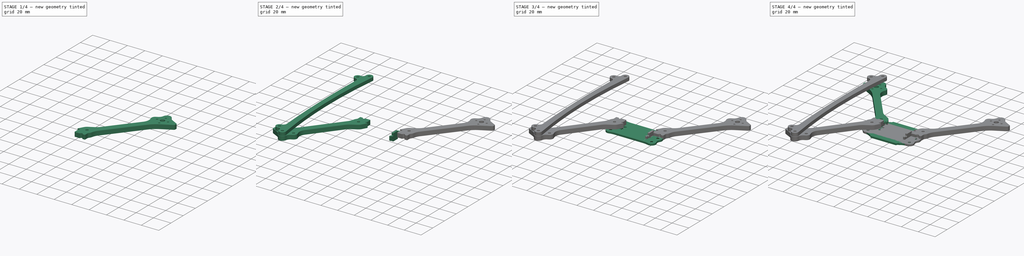
[diagram: build sequence overview — one tinted view per stage of 4, left to right]
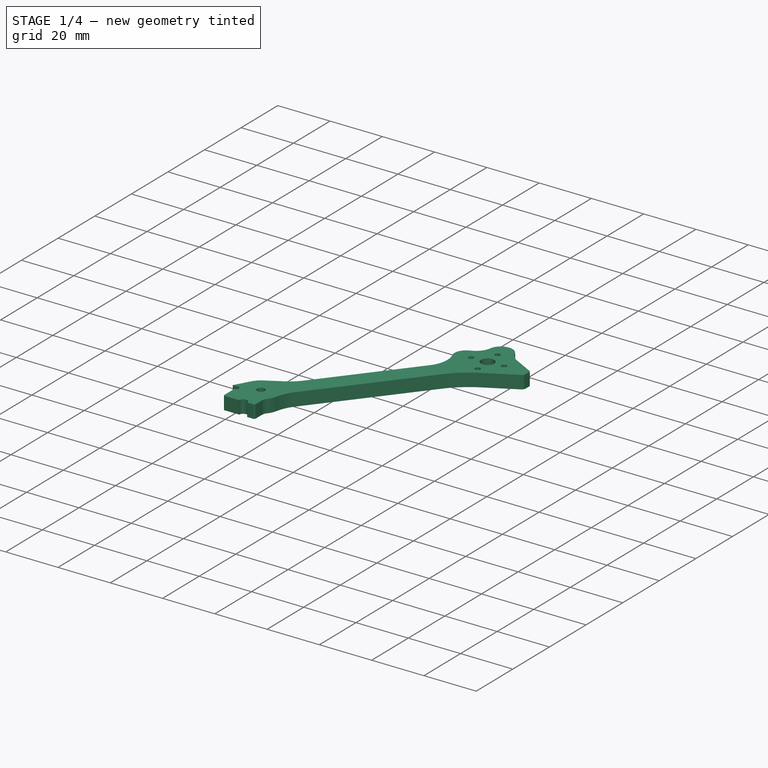
[diagram: stage 1 of 4 — iso view after this stage's code; geometry added in this stage tinted green]
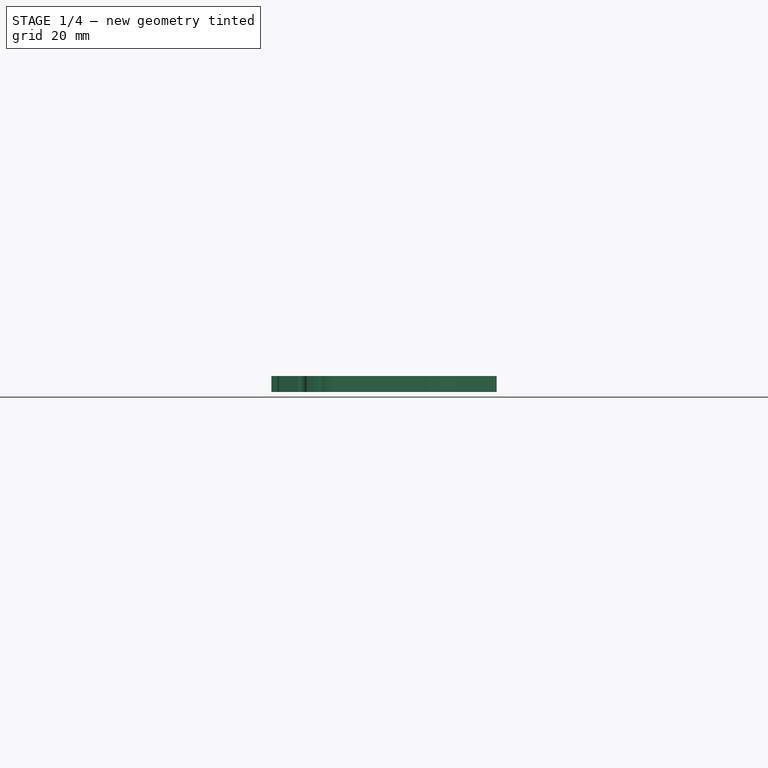
[diagram: stage 1 of 4 — front view after this stage's code; geometry added in this stage tinted green]
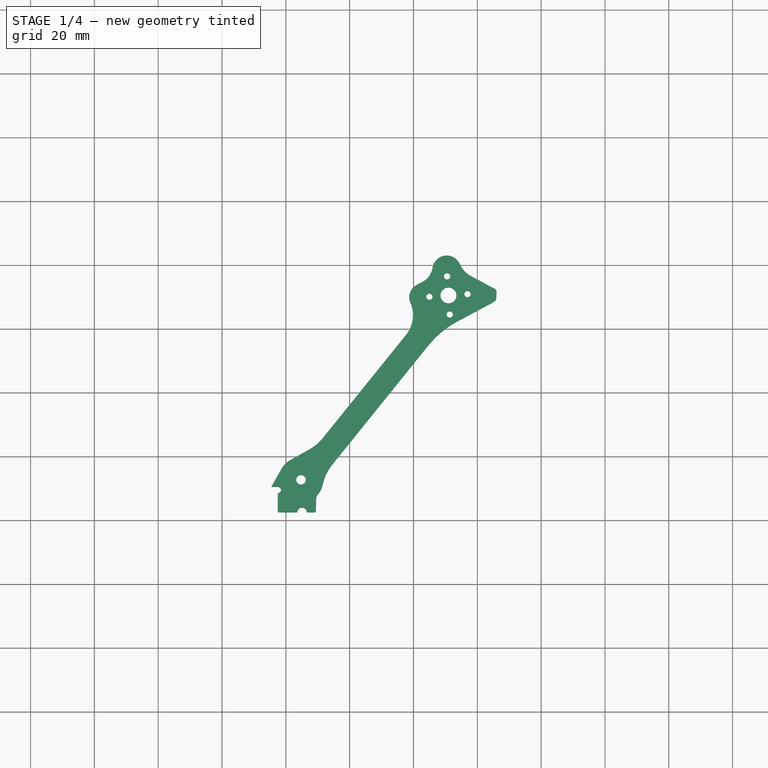
[diagram: stage 1 of 4 — top view after this stage's code; geometry added in this stage tinted green]
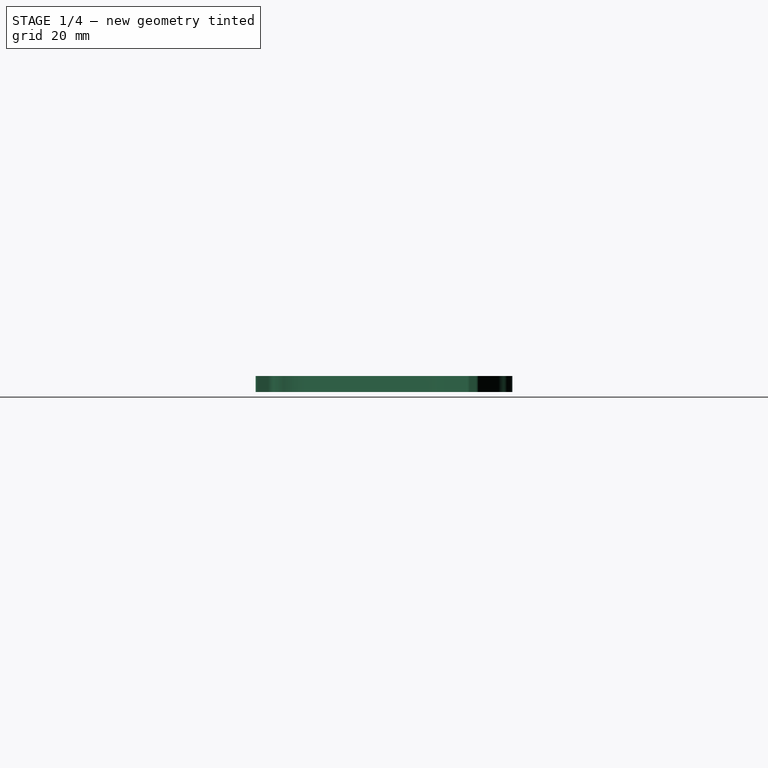
[diagram: stage 1 of 4 — right view after this stage's code; geometry added in this stage tinted green]
FCSTD DOCUMENT  (FreeCAD 0.21R33675 (Git))
Label: fin_racer_whoop
License: All rights reserved
LicenseURL: http://en.wikipedia.org/wiki/All_rights_reserved
objects: Sketcher::SketchObject×6, PartDesign::Pad×6, PartDesign::Body×5, Part::Mirroring×4, Part::Part2DObjectPython×1, Spreadsheet::Sheet×1, PartDesign::Chamfer×1
note: 30 computed .brp shape members not serialized (recipe doc carries the construction recipe); baked Part::Feature solids carry a one-line shape summary decoded from their .brp

FEATURE [Sketcher::SketchObject] Sketch  label="arm"
  FullyConstrained = false
  Placement = pos=(-58.4751,-88.8667,4.99999) rot=(0,0,1;2.58185rad)
  expr: Constraints[107] = <<params>>.stands_spacing / 2 + 0.2
  sketch-geometry (55):
    g0: Circle CenterX=19.5 CenterY=-15 CenterZ=0 NormalX=0 NormalY=0 NormalZ=1 AngleXU=0 Radius=2.5
    g1: Circle CenterX=14.6855 CenterY=-8.61092 CenterZ=0 NormalX=0 NormalY=0 NormalZ=1 AngleXU=0 Radius=1
    g2: Circle CenterX=13.1109 CenterY=-19.8145 CenterZ=0 NormalX=0 NormalY=0 NormalZ=1 AngleXU=0 Radius=1
    g3: Circle CenterX=25.8891 CenterY=-10.1855 CenterZ=0 NormalX=0 NormalY=0 NormalZ=1 AngleXU=0 Radius=1
    g4: ArcOfCircle CenterX=14.6855 CenterY=-8.61092 CenterZ=0 NormalX=0 NormalY=0 NormalZ=1 AngleXU=0 Radius=4.5 StartAngle=0.996679 EndAngle=3.56665
    g5: ArcOfCircle CenterX=5.04089 CenterY=-12.9766 CenterZ=0 NormalX=0 NormalY=0 NormalZ=1 AngleXU=0 Radius=6.08665 StartAngle=5.77047 EndAngle=6.70825
    g6: ArcOfCircle CenterX=13.1109 CenterY=-19.8145 CenterZ=0 NormalX=0 NormalY=0 NormalZ=1 AngleXU=0 Radius=4.3 StartAngle=2.62888 EndAngle=4.12277
    g7: LineSegment StartX=9.36382 StartY=-17.7052 StartZ=0 EndX=10.3449 EndY=-15.9624 EndZ=0
    g8: ArcOfCircle CenterX=21.4742 CenterY=1.88499 CenterZ=0 NormalX=0 NormalY=0 NormalZ=1 AngleXU=0 Radius=8 StartAngle=4.13827 EndAngle=4.79781
    g9: LineSegment StartX=22.1567 StartY=-6.08585 StartZ=0 EndX=30.5921 EndY=-5.36353 EndZ=0
    g10: LineSegment StartX=31.5435 StartY=-5.85988 StartZ=0 EndX=32.5435 EndY=-7.59193 EndZ=0
    g11: LineSegment StartX=32.5572 StartY=-8.86753 StartZ=0 EndX=26.3013 EndY=-20.2633 EndZ=0
    g12: ArcOfCircle CenterX=30.6774 CenterY=-6.35988 CenterZ=0 NormalX=0 NormalY=0 NormalZ=1 AngleXU=0 Radius=1 StartAngle=0.523599 EndAngle=1.65622
    g13: ArcOfCircle CenterX=31.4176 CenterY=-8.24193 CenterZ=0 NormalX=0 NormalY=0 NormalZ=1 AngleXU=0 Radius=1.3 StartAngle=5.78114 EndAngle=6.80678
    g14: ArcOfCircle CenterX=5.15948 CenterY=-31.7 CenterZ=0 NormalX=0 NormalY=0 NormalZ=1 AngleXU=0 Radius=10 StartAngle=6.18192 EndAngle=7.26436
    g15: ArcOfCircle CenterX=52.5992 CenterY=-34.7 CenterZ=0 NormalX=0 NormalY=0 NormalZ=1 AngleXU=0 Radius=30 StartAngle=2.63954 EndAngle=3.04032
    g16: LineSegment StartX=15.1082 StartY=-32.711 StartZ=0 EndX=10.9274 EndY=-73.8541 EndZ=0
    g17: LineSegment StartX=22.7529 StartY=-31.6671 StartZ=0 EndX=17.9174 EndY=-79.253 EndZ=0
    g18: ArcOfCircle CenterX=-3.99576 CenterY=-72.3376 CenterZ=0 NormalX=0 NormalY=0 NormalZ=1 AngleXU=0 Radius=15 StartAngle=5.80123 EndAngle=6.18192
    g19: ArcOfCircle CenterX=32.8405 CenterY=-80.7694 CenterZ=0 NormalX=0 NormalY=0 NormalZ=1 AngleXU=0 Radius=15 StartAngle=3.04032 EndAngle=3.50789
    g20: ArcOfCircle CenterX=12.3 CenterY=-88.6489 CenterZ=0 NormalX=0 NormalY=0 NormalZ=1 AngleXU=0 Radius=7 StartAngle=2.65964 EndAngle=3.20637
    g21: ArcOfCircle CenterX=12.3 CenterY=-88.6489 CenterZ=0 NormalX=0 NormalY=0 NormalZ=1 AngleXU=0 Radius=7 StartAngle=6.16252 EndAngle=6.64948
    g22: ArcOfCircle CenterX=21.9295 CenterY=-89.8165 CenterZ=0 NormalX=0 NormalY=0 NormalZ=1 AngleXU=0 Radius=2.7 StartAngle=3.02092 EndAngle=3.71755
    g23: Circle CenterX=12.3 CenterY=-88.6489 CenterZ=0 NormalX=0 NormalY=0 NormalZ=1 AngleXU=0 Radius=1.5
    g24: LineSegment StartX=19.3985 StartY=-96.2012 StartZ=0 EndX=21.4113 EndY=-94.8941 EndZ=0
    g25: LineSegment StartX=19.6651 StartY=-91.2871 StartZ=0 EndX=21.5583 EndY=-94.2024 EndZ=0
    g26: ArcOfCircle CenterX=21.139 CenterY=-94.4747 CenterZ=0 NormalX=0 NormalY=0 NormalZ=1 AngleXU=0 Radius=0.5 StartAngle=5.28835 EndAngle=6.85914
    g27: ArcOfCircle CenterX=18.1405 CenterY=-97.0182 CenterZ=0 NormalX=0 NormalY=0 NormalZ=1 AngleXU=0 Radius=1.5 StartAngle=0.575959 EndAngle=3.71755
    g28: LineSegment StartX=9.2956 StartY=-79.2903 StartZ=0 EndX=6.09737 EndY=-85.4043 EndZ=0
    g29: Circle CenterX=19.5 CenterY=-15 CenterZ=0 NormalX=0 NormalY=0 NormalZ=1 AngleXU=0 Radius=8
    g30: LineSegment StartX=13.1109 StartY=-19.8145 StartZ=0 EndX=24.3145 EndY=-21.3891 EndZ=0
    g31: LineSegment StartX=24.3145 StartY=-21.3891 StartZ=0 EndX=25.8891 EndY=-10.1855 EndZ=0
    g32: LineSegment StartX=25.8891 StartY=-10.1855 StartZ=0 EndX=14.6855 EndY=-8.61092 EndZ=0
    g33: LineSegment StartX=14.6855 StartY=-8.61092 StartZ=0 EndX=13.1109 EndY=-19.8145 EndZ=0
    g34: Circle CenterX=19.5 CenterY=-15 CenterZ=0 NormalX=0 NormalY=0 NormalZ=1 AngleXU=0 Radius=8
    g35: LineSegment StartX=19.5 StartY=-15 StartZ=0 EndX=19.5 EndY=0 EndZ=0
    g36: LineSegment StartX=19.5 StartY=-15 StartZ=0 EndX=25.8891 EndY=-10.1855 EndZ=0
    g37: LineSegment StartX=19.4087 StartY=-64.5771 StartZ=0 EndX=11.9471 EndY=-63.8189 EndZ=0
    g38: Circle CenterX=19.5 CenterY=-15 CenterZ=0 NormalX=0 NormalY=0 NormalZ=1 AngleXU=0 Radius=63.5
    g39: LineSegment StartX=8.49874 StartY=-96.1254 StartZ=0 EndX=11.4943 EndY=-100.738 EndZ=0
    g40: LineSegment StartX=12.1859 StartY=-100.885 StartZ=0 EndX=16.8825 EndY=-97.8351 EndZ=0
    g41: ArcOfCircle CenterX=11.9136 CenterY=-100.466 CenterZ=0 NormalX=0 NormalY=0 NormalZ=1 AngleXU=0 Radius=0.5 StartAngle=3.71755 EndAngle=5.28835
    g42: LineSegment StartX=18.1405 StartY=-97.0182 StartZ=0 EndX=8.15085 EndY=-81.6355 EndZ=0
    g43: LineSegment StartX=7.40946 StartY=-94.4481 StartZ=0 EndX=5.73212 EndY=-95.5373 EndZ=0
    g44: LineSegment StartX=5.73212 StartY=-95.5373 StartZ=0 EndX=5.31468 EndY=-89.102 EndZ=0
    g45: ArcOfCircle CenterX=7.9541 CenterY=-95.2867 CenterZ=0 NormalX=0 NormalY=0 NormalZ=1 AngleXU=0 Radius=1 StartAngle=5.28835 EndAngle=8.42994
    g46: LineSegment StartX=23.1109 StartY=-19.7918 StartZ=0 EndX=24.2918 EndY=-11.3891 EndZ=0
    g47: LineSegment StartX=24.2918 StartY=-11.3891 StartZ=0 EndX=15.8891 EndY=-10.2082 EndZ=0
    g48: LineSegment StartX=15.8891 StartY=-10.2082 StartZ=0 EndX=14.7082 EndY=-18.6109 EndZ=0
    g49: LineSegment StartX=14.7082 StartY=-18.6109 StartZ=0 EndX=23.1109 EndY=-19.7918 EndZ=0
    g50: Circle CenterX=19.5 CenterY=-15 CenterZ=0 NormalX=0 NormalY=0 NormalZ=1 AngleXU=0 Radius=6
    g51: Circle CenterX=15.8891 CenterY=-10.2082 CenterZ=0 NormalX=0 NormalY=0 NormalZ=1 AngleXU=0 Radius=1
    g52: Circle CenterX=24.2918 CenterY=-11.3891 CenterZ=0 NormalX=0 NormalY=0 NormalZ=1 AngleXU=0 Radius=1
    g53: Circle CenterX=14.7082 CenterY=-18.6109 CenterZ=0 NormalX=0 NormalY=0 NormalZ=1 AngleXU=0 Radius=1
    g54: Circle CenterX=23.1109 CenterY=-19.7918 CenterZ=0 NormalX=0 NormalY=0 NormalZ=1 AngleXU=0 Radius=1
  constraints (159):
    c: Coincident(g5,g4)
    c: Coincident(g7,g6)
    c: Coincident(g7,g5)
    c: Coincident(g9,g8)
    c: Coincident(g12,g9)
    c: Coincident(g12,g10)
    c: Coincident(g13,g10)
    c: Coincident(g13,g11)
    c: Coincident(g15,g11)
    c: Coincident(g16,g14)
    c: Coincident(g17,g15)
    c: Coincident(g18,g16)
    c: Coincident(g19,g17)
    c: Coincident(g21,g19)
    c: Coincident(g22,g21)
    c: Coincident(g25,g22)
    c: Coincident(g26,g25)
    c: Coincident(g26,g24)
    c: Coincident(g28,g18)
    c: Coincident(g28,g20)
    c: Coincident(g29,g0)
    c: Radius(g0) = 2.5
    c: Radius(g3) = 1
    c: Radius(g29) = 8
    c: Coincident(g30,g31)
    c: Coincident(g31,g32)
    c: Coincident(g32,g33)
    c: Coincident(g33,g30)
    c: Equal(g30,g31)
    c: Equal(g30,g32)
    c: Equal(g30,g33)
    c: PointOnObject(g30,g34)
    c: PointOnObject(g31,g34)
    c: PointOnObject(g32,g34)
    c: PointOnObject(g33,g34)
    c: Coincident(g34,g0)
    c: PointOnObject(g33,g29)
    c: Coincident(g2,g30)
    c: Coincident(g1,g32)
    c: Coincident(g3,g31)
    c: Coincident(g35,g0)
    c: PointOnObject(g35,g-1)
    c: Vertical(g35)
    c: Coincident(g36,g0)
    c: Coincident(g36,g3)
    c: Tangent(g4,g5)
    c: Tangent(g8,g9)
    c: Tangent(g9,g12)
    c: Tangent(g12,g10)
    c: Tangent(g10,g13)
    c: Tangent(g11,g13)
    c: Radius(g23) = 1.5
    c: Tangent(g7,g5)
    c: Tangent(g7,g6)
    c: Tangent(g14,g16)
    c: Tangent(g17,g15)
    c: Tangent(g15,g11)
    c: Tangent(g16,g18)
    c: Tangent(g18,g28)
    c: Tangent(g28,g20)
    c: Tangent(g19,g17)
    c: Tangent(g19,g21)
    c: Tangent(g21,g22)
    c: Tangent(g22,g25)
    c: Tangent(g26,g25)
    c: Tangent(g26,g24)
    c: Radius(g27) = 1.5
    c: Parallel(g16,g17)
    c: PointOnObject(g37,g17)
    c: PointOnObject(g37,g16)
    c: Perpendicular(g17,g37)
    c: Distance(g37) = 7.5
    c: Distance(g0,g23) = 74
    c: Radius(g6) = 4.3
    c: Radius(g4) = 4.5
    c: Radius(g15) = 30
    c: Radius(g13) = 1.3
    c: Radius(g12) = 1
    c: Radius(g8) = 8
    c: Radius(g14) = 10
    c: Radius(g18) = 15
    c: Radius(g19) = 15
    c: Radius(g20) = 7
    c: Radius(g21) = 7
    c: Coincident(g20,g23)
    c: Coincident(g21,g20)
    c: Equal(g2,g1)
    c: Equal(g1,g3)
    c: Coincident(g6,g2)
    c: Coincident(g4,g1)
    c: Angle(g36,g35) = 0.925025
    c: Coincident(g27,g24)
    c: Perpendicular(g27,g24)
    c: Distance(g27,g25) = 4.4
    c: DistanceX(g-1,g35) = 19.5
    c: Distance(g20,g-2) = 12.3
    c: Distance(g0,g11) = 8.6
    c: Distance(g5,g0) = 14.6
    c: Distance(g0,g10) = 15
    c: Distance(g0,g8) = 17
    c: Distance(g10) = 2
    c: Tangent(g4,g8) = 1.5708
    c: Tangent(g14,g6) = 1.5708
    c: Coincident(g38,g0)
    c: Radius(g38) = 63.5
    c: Angle(g-1,g10) = 2.0944
    c: Distance(g11) = 13
    c: Distance(g20,g24) = 10.2
    c: Distance(g22,g39) = 12
    c: Parallel(g25,g39)
    c: Angle(g39,g-2) = 2.56563
    c: Coincident(g40,g27)
    c: Perpendicular(g40,g39)
    c: Tangent(g40,g41) = -1.5708
    c: Tangent(g39,g41) = -1.5708
    c: Radius(g41) = 0.5
    c: Equal(g41,g26)
    c: Coincident(g42,g27)
    c: Perpendicular(g24,g42)
    c: Distance(g20,g42) = 0.34
    c: Perpendicular(g27,g40)
    c: DistanceY(g0,g35) = 15
    c: Radius(g22) = 2.7
    c: Coincident(g44,g43)
    c: Tangent(g44,g20) = 1.5708
    c: Perpendicular(g39,g43)
    c: Distance(g43,g40) = 8
    c: Distance(g43) = 2
    c: Radius(g45) = 1
    c: Tangent(g45,g43) = -1.5708
    c: Perpendicular(g45,g39)
    c: Parallel(g24,g40)
    c: Coincident(g39,g45)
    c: Distance(g28) = 6.9
    c: Distance(g15,g-1) = 34.7
    c: Distance(g14,g-1) = 31.7
    c: Distance(g7) = 2
    c: Coincident(g46,g47)
    c: Coincident(g47,g48)
    c: Coincident(g48,g49)
    c: Coincident(g49,g46)
    c: Equal(g46,g47)
    c: Equal(g46,g48)
    c: Equal(g46,g49)
    c: PointOnObject(g46,g50)
    c: PointOnObject(g47,g50)
    c: PointOnObject(g48,g50)
    c: PointOnObject(g49,g50)
    c: Coincident(g50,g0)
    c: Diameter(g50) = 12
    c: Coincident(g51,g47)
    c: Coincident(g52,g46)
    c: Coincident(g53,g48)
    c: Coincident(g54,g46)
    c: Equal(g51,g53)
    c: Equal(g53,g54)
    c: Equal(g54,g52)
    c: Diameter(g52) = 2
    c: Parallel(g49,g30)
FEATURE [PartDesign::Pad] Pad  label="arm_pad"
  Direction = (0,0,1)
  Length = 5
  Length2 = 10
  Placement = pos=(-58.4751,-88.8667,4.99999) rot=(0,0,1;2.58185rad)
  Profile = -> Sketch
  ReferenceAxis = -> Sketch [N_Axis]
  Type = 0
FEATURE [PartDesign::Body] Body010  label="middle_25.5x25.5"
  Group = -> [Sketch009,Pad009]
  Origin = -> Origin010
  Placement = pos=(0,0,5) rot=(0,0,1;0rad)
  Tip = -> Pad009
FEATURE [Sketcher::SketchObject] Sketch010  label="brace"
  ExternalGeometry = -> [Pad]
  FullyConstrained = false
  MapMode = 5
  Placement = pos=(-58.4751,-88.8667,4.99999) rot=(0.276234,0.96109,0;3.14159rad)
  Support = -> [Pad]
  sketch-geometry (19):
    g0: LineSegment StartX=16.8825 StartY=-97.8351 StartZ=0 EndX=142.132 EndY=-16.4971 EndZ=0
    g1: LineSegment StartX=61.9377 StartY=-68.5759 StartZ=0 EndX=23.5685 EndY=-9.49249 EndZ=0
    g2: ArcOfCircle CenterX=-857.988 CenterY=-665.982 CenterZ=0 NormalX=0 NormalY=0 NormalZ=1 AngleXU=0 Radius=1096.89 StartAngle=0.575959 EndAngle=0.631069
    g3: ArcOfCircle CenterX=-429.523 CenterY=-387.734 CenterZ=0 NormalX=0 NormalY=0 NormalZ=1 AngleXU=0 Radius=580 StartAngle=0.575959 EndAngle=0.706511
    g4: ArcOfCircle CenterX=14.6855 CenterY=-8.61092 CenterZ=0 NormalX=0 NormalY=0 NormalZ=1 AngleXU=0 Radius=4 StartAngle=0.490213 EndAngle=3.8481
    g5: ArcOfCircle CenterX=25.8891 CenterY=-10.1855 CenterZ=0 NormalX=0 NormalY=0 NormalZ=1 AngleXU=0 Radius=4 StartAngle=5.38347 EndAngle=8.65531
    g6: ArcOfCircle CenterX=20.8611 CenterY=-5.31522 CenterZ=0 NormalX=0 NormalY=0 NormalZ=1 AngleXU=0 Radius=3 StartAngle=3.63181 EndAngle=5.51372
    g7: ArcOfCircle CenterX=30.8637 CenterY=-16.4507 CenterZ=0 NormalX=0 NormalY=0 NormalZ=1 AngleXU=0 Radius=4 StartAngle=2.24188 EndAngle=3.77266
    g8: ArcOfCircle CenterX=-857.988 CenterY=-665.982 CenterZ=0 NormalX=0 NormalY=0 NormalZ=1 AngleXU=0 Radius=1096.89 StartAngle=0.520848 EndAngle=0.575959
    g9: ArcOfCircle CenterX=-429.523 CenterY=-387.734 CenterZ=0 NormalX=0 NormalY=0 NormalZ=1 AngleXU=0 Radius=580 StartAngle=0.445406 EndAngle=0.575959
    g10: ArcOfCircle CenterX=97.4992 CenterY=-136.133 CenterZ=0 NormalX=0 NormalY=0 NormalZ=1 AngleXU=0 Radius=4 StartAngle=3.587 EndAngle=6.94489
    g11: ArcOfCircle CenterX=100.618 CenterY=-125.257 CenterZ=0 NormalX=0 NormalY=0 NormalZ=1 AngleXU=0 Radius=4 StartAngle=5.06298 EndAngle=8.33482
    g12: ArcOfCircle CenterX=103.022 CenterY=-131.832 CenterZ=0 NormalX=0 NormalY=0 NormalZ=1 AngleXU=0 Radius=3 StartAngle=1.92138 EndAngle=3.8033
    g13: ArcOfCircle CenterX=96.9175 CenterY=-118.165 CenterZ=0 NormalX=0 NormalY=0 NormalZ=1 AngleXU=0 Radius=4 StartAngle=3.66244 EndAngle=5.19323
    g14: Circle CenterX=25.8891 CenterY=-10.1855 CenterZ=0 NormalX=0 NormalY=0 NormalZ=1 AngleXU=0 Radius=1.5
    g15: Circle CenterX=14.6855 CenterY=-8.61092 CenterZ=0 NormalX=0 NormalY=0 NormalZ=1 AngleXU=0 Radius=1.5
    g16: Circle CenterX=100.618 CenterY=-125.257 CenterZ=0 NormalX=0 NormalY=0 NormalZ=1 AngleXU=0 Radius=1.5
    g17: Circle CenterX=97.4992 CenterY=-136.133 CenterZ=0 NormalX=0 NormalY=0 NormalZ=1 AngleXU=0 Radius=1.5
    g18: LineSegment StartX=12.1859 StartY=-100.885 StartZ=0 EndX=-429.523 EndY=-387.734 EndZ=0
  constraints (44):
    c: Coincident(g0,g-3)
    c: Parallel(g0,g-3)
    c: PointOnObject(g1,g0)
    c: Perpendicular(g0,g1)
    c: Coincident(g2,g1)
    c: Perpendicular(g2,g0)
    c: PointOnObject(g3,g0)
    c: Distance(g3,g2) = 6
    c: Coincident(g4,g-5)
    c: Coincident(g5,g-6)
    c: Radius(g4) = 4
    c: Equal(g4,g5)
    c: Radius(g6) = 3
    c: Radius(g7) = 4
    c: Tangent(g2,g7) = 1.5708
    c: Tangent(g5,g7) = 1.5708
    c: Tangent(g4,g3) = 1.5708
    c: Tangent(g5,g6) = 1.5708
    c: Tangent(g4,g6) = 1.5708
    c: Equal(g10,g11)
    c: Radius(g12) = 3
    c: Tangent(g8,g13) = 1.5708
    c: Tangent(g11,g13) = 1.5708
    c: Tangent(g10,g9) = 1.5708
    c: Tangent(g11,g12) = 1.5708
    c: Tangent(g10,g12) = 1.5708
    c: Coincident(g14,g5)
    c: Coincident(g15,g4)
    c: Equal(g15,g14)
    c: Radius(g14) = 1.5
    c: Equal(g17,g16)
    c: Coincident(g10,g17)
    c: Coincident(g16,g11)
    c: Symmetric(g9,g3,g0)
    c: Symmetric(g8,g2,g0)
    c: Symmetric(g10,g4,g0)
    c: Tangent(g9,g3) = -1.5708
    c: Tangent(g8,g2) = -1.5708
    c: Distance(g2,g5) = 8.8
    c: Symmetric(g11,g5,g0)
    c: Equal(g16,g14)
    c: Radius(g3) = 580
    c: Coincident(g18,g-3)
    c: Coincident(g18,g3)
FEATURE [Part::Mirroring] Part__Mirroring  label="arm_pad (Mirror #1)"
  Base = (0,0,0)
  Normal = (1,0,0)
  Placement = pos=(2.79018,-5.89493,-5) rot=(0,0,1;0.017453rad)
  Source = -> Pad
FEATURE [Part::Mirroring] Part__Mirroring003  label="arm_pad (Mirror #4)"
  Base = (0,0,0)
  Normal = (0,1,0)
  Source = -> Part__Mirroring
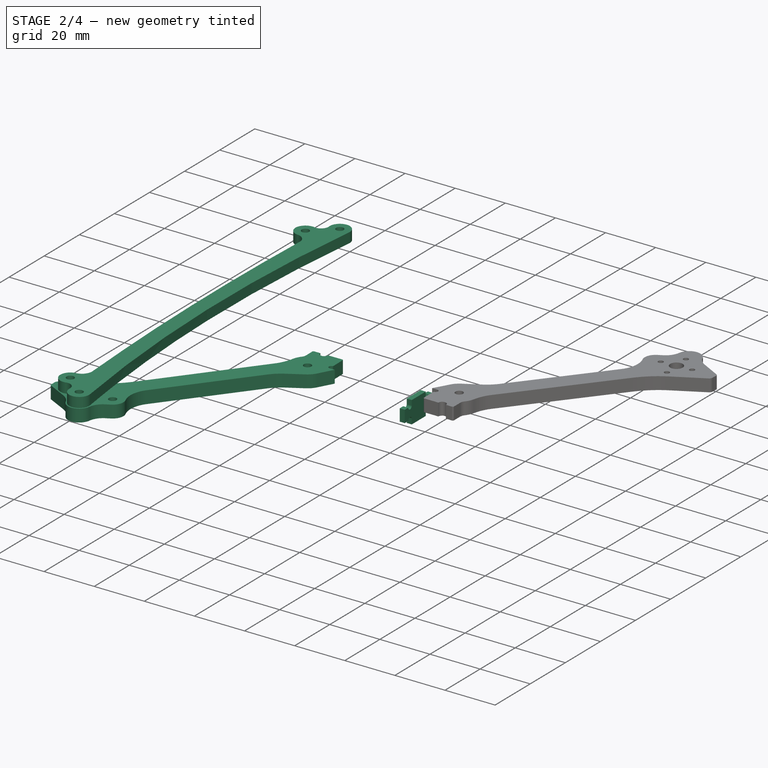
[diagram: stage 2 of 4 — iso view after this stage's code; geometry added in this stage tinted green]
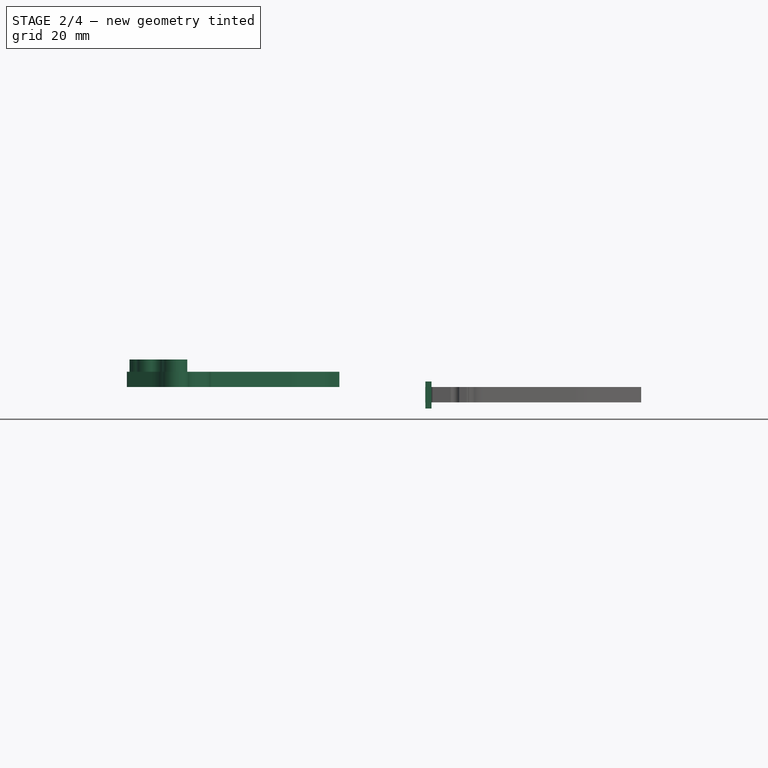
[diagram: stage 2 of 4 — front view after this stage's code; geometry added in this stage tinted green]
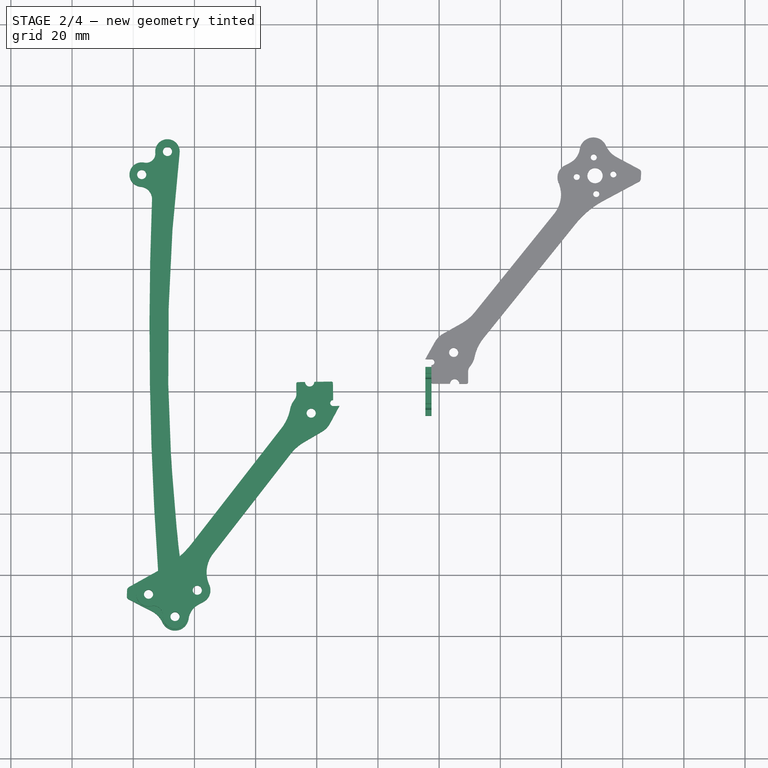
[diagram: stage 2 of 4 — top view after this stage's code; geometry added in this stage tinted green]
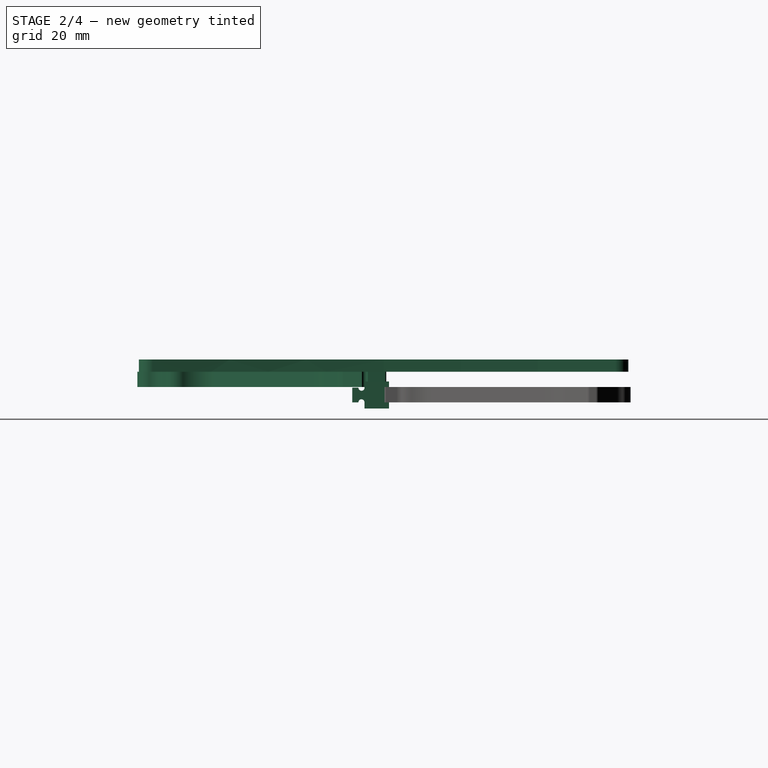
[diagram: stage 2 of 4 — right view after this stage's code; geometry added in this stage tinted green]
FEATURE [PartDesign::Body] Body007  label="top_wide"
  Group = -> [Sketch007,Pad007]
  Origin = -> Origin007
  Placement = pos=(0,0,24) rot=(0,0,1;0rad)
  Tip = -> Pad007
FEATURE [Sketcher::SketchObject] Sketch008  label="twiggle_v2_005"
  FullyConstrained = true
  MapMode = 5
  Placement = pos=(0,0,0) rot=(0.57735,0.57735,0.57735;2.0944rad)
  Support = -> [YZ_Plane008]
  sketch-geometry (16):
    g0: LineSegment StartX=-8 StartY=4.8 StartZ=0 EndX=-8 EndY=9e-16 EndZ=0
    g1: LineSegment StartX=-4 StartY=-2 StartZ=0 EndX=4 EndY=-2 EndZ=0
    g2: LineSegment StartX=8 StartY=1e-16 StartZ=0 EndX=8 EndY=4.8 EndZ=0
    g3: LineSegment StartX=4 StartY=6.8 StartZ=0 EndX=-4 EndY=6.8 EndZ=0
    g4: LineSegment StartX=-4 StartY=6.8 StartZ=0 EndX=-4 EndY=4.8 EndZ=0
    g5: LineSegment StartX=-8 StartY=4.8 StartZ=0 EndX=-6 EndY=4.8 EndZ=0
    g6: LineSegment StartX=-8 StartY=1.2e-15 StartZ=0 EndX=-6 EndY=1.2e-15 EndZ=0
    g7: LineSegment StartX=-4 StartY=6e-16 StartZ=0 EndX=-4 EndY=-2 EndZ=0
    g8: LineSegment StartX=4 StartY=-2 StartZ=0 EndX=4 EndY=-2e-16 EndZ=0
    g9: LineSegment StartX=6 StartY=1e-16 StartZ=0 EndX=8 EndY=1e-16 EndZ=0
    g10: LineSegment StartX=8 StartY=4.8 StartZ=0 EndX=6 EndY=4.8 EndZ=0
    g11: LineSegment StartX=4 StartY=4.8 StartZ=0 EndX=4 EndY=6.8 EndZ=0
    g12: ArcOfCircle CenterX=5 CenterY=1e-16 CenterZ=0 NormalX=0 NormalY=0 NormalZ=1 AngleXU=0 Radius=1 StartAngle=0 EndAngle=3.14159
    g13: ArcOfCircle CenterX=-5 CenterY=1.00108e-05 CenterZ=0 NormalX=0 NormalY=0 NormalZ=1 AngleXU=0 Radius=1 StartAngle=6.28318 EndAngle=9.42479
    g14: ArcOfCircle CenterX=-5 CenterY=4.8 CenterZ=0 NormalX=0 NormalY=0 NormalZ=1 AngleXU=0 Radius=1 StartAngle=3.14159 EndAngle=6.28319
    g15: ArcOfCircle CenterX=5 CenterY=4.8 CenterZ=0 NormalX=0 NormalY=0 NormalZ=1 AngleXU=0 Radius=1 StartAngle=3.14159 EndAngle=6.28319
  constraints (50):
    c: Horizontal(g1)
    c: Horizontal(g3)
    c: Vertical(g0)
    c: Vertical(g2)
    c: Vertical(g4)
    c: Horizontal(g5)
    c: Horizontal(g6)
    c: Vertical(g7)
    c: Vertical(g8)
    c: Horizontal(g9)
    c: Horizontal(g10)
    c: Vertical(g11)
    c: Equal(g9,g10)
    c: Distance(g-1,g1) = 2
    c: Coincident(g0,g5)
    c: Coincident(g3,g4)
    c: Coincident(g0,g6)
    c: Coincident(g1,g7)
    c: Coincident(g2,g9)
    c: Coincident(g1,g8)
    c: Coincident(g2,g10)
    c: Coincident(g3,g11)
    c: Distance(g2) = 4.8
    c: Distance(g1) = 8
    c: DistanceY(g1,g2) = 2
    c: Equal(g9,g6)
    c: Equal(g7,g4)
    c: Equal(g6,g5)
    c: Equal(g0,g2)
    c: Symmetric(g8,g7,g-2)
    c: DistanceX(g1,g2) = 4
    c: Coincident(g12,g9)
    c: PointOnObject(g12,g-1)
    c: Perpendicular(g12,g9)
    c: Coincident(g8,g12)
    c: Radius(g12) = 1
    c: Symmetric(g6,g9,g-2)
    c: Horizontal(g11,g10)
    c: Horizontal(g4,g5)
    c: Coincident(g13,g6)
    c: Coincident(g13,g7)
    c: Coincident(g14,g5)
    c: Coincident(g14,g4)
    c: Coincident(g15,g11)
    c: Coincident(g15,g10)
    c: Equal(g15,g14)
    c: Equal(g14,g13)
    c: Equal(g13,g12)
    c: Perpendicular(g15,g10)
    c: Perpendicular(g14,g5)
FEATURE [PartDesign::Pad] Pad008  label="twiggle_v2_004"
  Direction = (1,-2e-16,3e-16)
  Length = 2
  Length2 = 10
  Placement = pos=(0,0,0) rot=(0.57735,0.57735,0.57735;2.0944rad)
  Profile = -> Sketch008
  ReferenceAxis = -> Sketch008 [N_Axis]
  Type = 0
FEATURE [PartDesign::Body] Body003  label="bottom002"
  Group = -> [Sketch003,Pad003,Chamfer]
  Origin = -> Origin003
  Placement = pos=(0,0,-2) rot=(0,0,1;0rad)
  Tip = -> Chamfer
FEATURE [PartDesign::Pad] Pad018
  BaseFeature = -> Pad
  Direction = (0,0,1)
  Length = 4
  Length2 = 10
  Placement = pos=(-58.4751,-88.8667,4.99999) rot=(0,0,1;2.58185rad)
  Profile = -> Sketch010
  ReferenceAxis = -> Sketch010 [N_Axis]
  Type = 0
FEATURE [PartDesign::Body] Body  label="arm_2203.5_12mm_M2_001"
  Group = -> [Sketch,Pad,Sketch010,Pad018]
  Origin = -> Origin
  Placement = pos=(-2.80498,-3.42609,-5.01902) rot=(0,0,-1;0.017453rad)
  Tip = -> Pad018
FEATURE [Part::Mirroring] Part__Mirroring002  label="twiggle_v2_003 (Mirror #3)"
  Base = (0,0,0)
  Normal = (1,0,0)
  Source = -> Body008
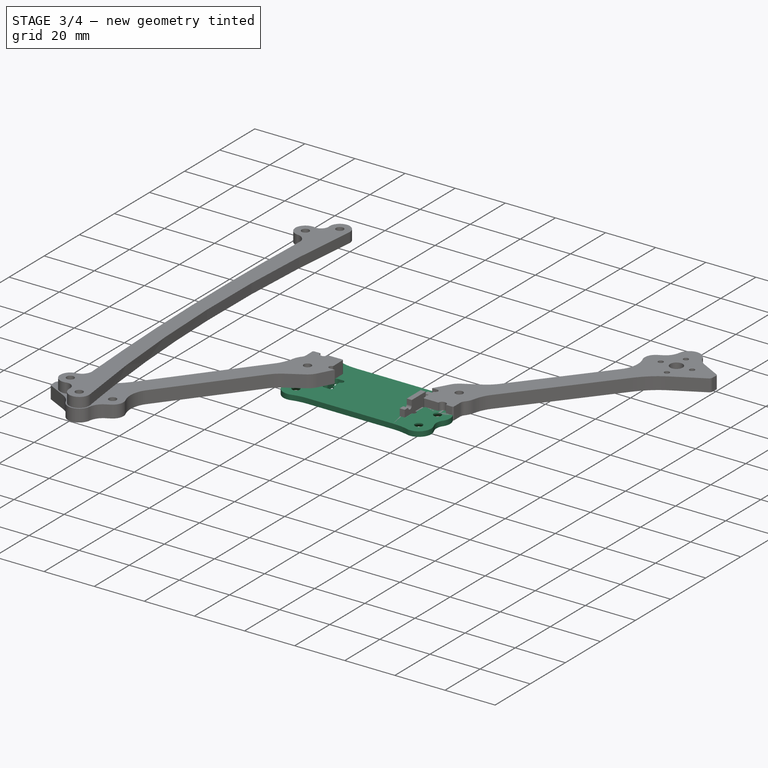
[diagram: stage 3 of 4 — iso view after this stage's code; geometry added in this stage tinted green]
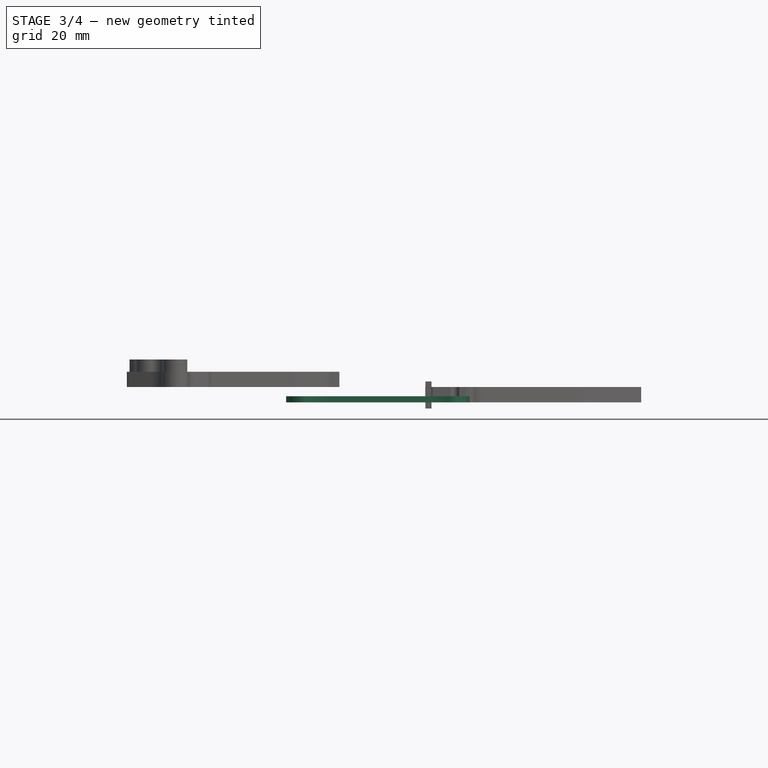
[diagram: stage 3 of 4 — front view after this stage's code; geometry added in this stage tinted green]
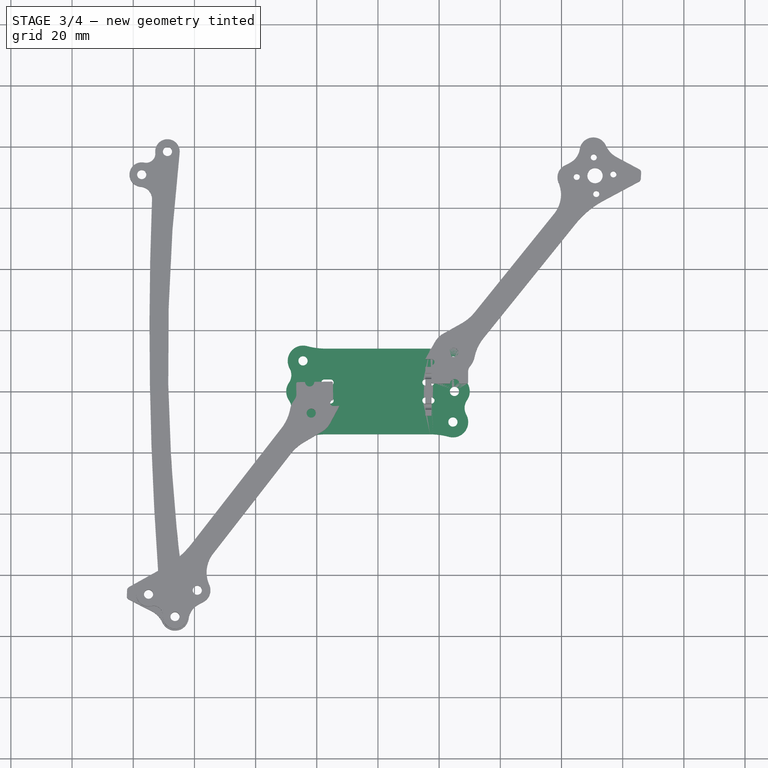
[diagram: stage 3 of 4 — top view after this stage's code; geometry added in this stage tinted green]
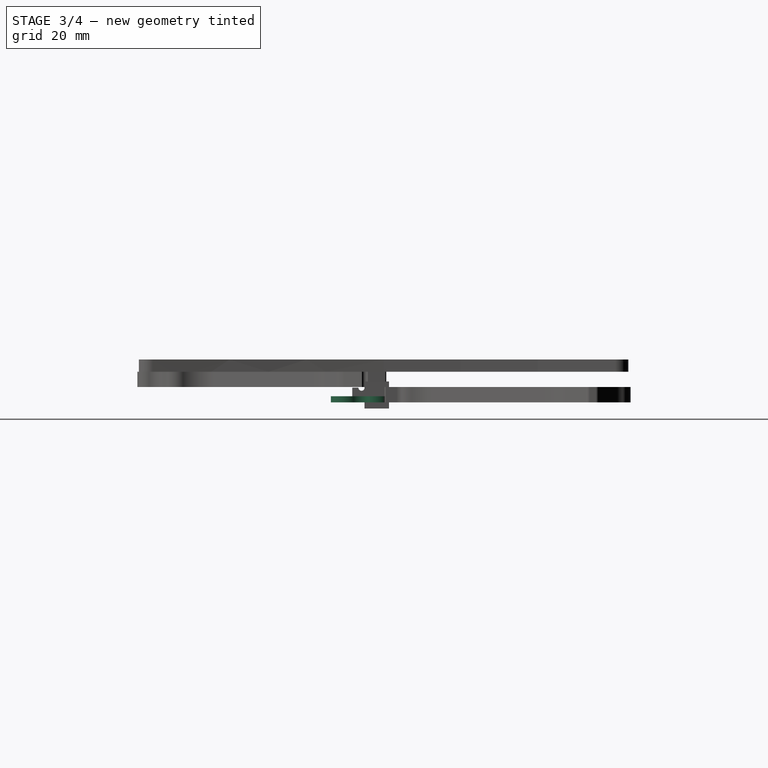
[diagram: stage 3 of 4 — right view after this stage's code; geometry added in this stage tinted green]
FEATURE [Sketcher::SketchObject] Sketch003  label="bottom"
  FullyConstrained = true
  MapMode = 5
  expr: Constraints[101] = <<params>>.plate_bottom_width / 2
  expr: Constraints[13] = <<params>>.screw_dia / 2
  expr: Constraints[1] = <<params>>.stands_spacing / 2
  expr: Constraints[2] = <<params>>.stands_length / 2
  expr: Constraints[44] = <<params>>.screw_dia + 1.5 mm
  expr: Constraints[45] = <<params>>.screw_dia + 2 mm
  expr: Constraints[58] = <<params>>.drill_bit_dia / 2
  expr: Constraints[7] = <<params>>.screw_dia / 2
  expr: Constraints[97] = <<params>>.screw_dia + 2 mm
  sketch-geometry (43):
    g0: Circle CenterX=-25 CenterY=0 CenterZ=0 NormalX=0 NormalY=0 NormalZ=1 AngleXU=0 Radius=1.5
    g1: Circle CenterX=-24.5 CenterY=-10 CenterZ=0 NormalX=0 NormalY=0 NormalZ=1 AngleXU=0 Radius=1.5
    g2: GeomPoint X=0 Y=0 Z=0
    g3: Circle CenterX=-24.5 CenterY=10 CenterZ=0 NormalX=0 NormalY=0 NormalZ=1 AngleXU=0 Radius=1.5
    g4: Circle CenterX=24.5 CenterY=-10 CenterZ=0 NormalX=0 NormalY=0 NormalZ=1 AngleXU=0 Radius=1.5
    g5: Circle CenterX=24.5 CenterY=10 CenterZ=0 NormalX=0 NormalY=0 NormalZ=1 AngleXU=0 Radius=1.5
    g6: Circle CenterX=25 CenterY=0 CenterZ=0 NormalX=0 NormalY=0 NormalZ=1 AngleXU=0 Radius=1.5
    g7: ArcOfCircle CenterX=-24.5 CenterY=-10 CenterZ=0 NormalX=0 NormalY=0 NormalZ=1 AngleXU=0 Radius=5 StartAngle=2.63652 EndAngle=4.97808
    g8: ArcOfCircle CenterX=-17.0167 CenterY=-37.5 CenterZ=0 NormalX=0 NormalY=0 NormalZ=1 AngleXU=0 Radius=23.5 StartAngle=1.5708 EndAngle=1.83648
    g9: ArcOfCircle CenterX=-25 CenterY=0 CenterZ=0 NormalX=0 NormalY=0 NormalZ=1 AngleXU=0 Radius=5 StartAngle=3.14159 EndAngle=3.74659
    g10: LineSegment StartX=-17.0167 StartY=-14 StartZ=0 EndX=0 EndY=-14 EndZ=0
    g11: ArcOfCircle CenterX=-24.5 CenterY=10 CenterZ=0 NormalX=0 NormalY=0 NormalZ=1 AngleXU=0 Radius=5 StartAngle=1.30511 EndAngle=3.64667
    g12: ArcOfCircle CenterX=-17.0167 CenterY=37.5 CenterZ=0 NormalX=0 NormalY=0 NormalZ=1 AngleXU=0 Radius=23.5 StartAngle=4.4467 EndAngle=4.71239
    g13: LineSegment StartX=-17.0167 StartY=14 StartZ=0 EndX=0 EndY=14 EndZ=0
    g14: LineSegment StartX=17.0167 StartY=-14 StartZ=0 EndX=0 EndY=-14 EndZ=0
    g15: ArcOfCircle CenterX=17.0167 CenterY=-37.5 CenterZ=0 NormalX=0 NormalY=0 NormalZ=1 AngleXU=0 Radius=23.5 StartAngle=1.30511 EndAngle=1.5708
    g16: ArcOfCircle CenterX=24.5 CenterY=-10 CenterZ=0 NormalX=0 NormalY=0 NormalZ=1 AngleXU=0 Radius=5 StartAngle=4.4467 EndAngle=6.78826
    g17: ArcOfCircle CenterX=24.5 CenterY=10 CenterZ=0 NormalX=0 NormalY=0 NormalZ=1 AngleXU=0 Radius=5 StartAngle=5.77811 EndAngle=8.11967
    g18: ArcOfCircle CenterX=17.0167 CenterY=37.5 CenterZ=0 NormalX=0 NormalY=0 NormalZ=1 AngleXU=0 Radius=23.5 StartAngle=4.71239 EndAngle=4.97808
    g19: LineSegment StartX=17.0167 StartY=14 StartZ=0 EndX=0 EndY=14 EndZ=0
    g20: ArcOfCircle CenterX=-32.8138 CenterY=-5.40319 CenterZ=0 NormalX=0 NormalY=0 NormalZ=1 AngleXU=0 Radius=4.5 StartAngle=5.77811 EndAngle=6.88818
    g21: ArcOfCircle CenterX=-32.8138 CenterY=5.40319 CenterZ=0 NormalX=0 NormalY=0 NormalZ=1 AngleXU=0 Radius=4.5 StartAngle=5.67819 EndAngle=6.78826
    g22: ArcOfCircle CenterX=-25 CenterY=1.9e-15 CenterZ=0 NormalX=0 NormalY=0 NormalZ=1 AngleXU=0 Radius=5 StartAngle=2.5366 EndAngle=3.14159
    g23: ArcOfCircle CenterX=32.8138 CenterY=-5.40319 CenterZ=0 NormalX=0 NormalY=0 NormalZ=1 AngleXU=0 Radius=4.5 StartAngle=2.5366 EndAngle=3.64667
    g24: ArcOfCircle CenterX=25 CenterY=1.526e-13 CenterZ=0 NormalX=0 NormalY=0 NormalZ=1 AngleXU=0 Radius=5 StartAngle=5.67819 EndAngle=6.28319
    g25: ArcOfCircle CenterX=25 CenterY=-1.518e-13 CenterZ=0 NormalX=0 NormalY=0 NormalZ=1 AngleXU=0 Radius=5 StartAngle=3.04e-14 EndAngle=0.604994
    g26: ArcOfCircle CenterX=32.8138 CenterY=5.40319 CenterZ=0 NormalX=0 NormalY=0 NormalZ=1 AngleXU=0 Radius=4.5 StartAngle=2.63652 EndAngle=3.74659
    g27: LineSegment StartX=-15.5 StartY=-1.95 StartZ=0 EndX=-15.5 EndY=1.95 EndZ=0
    g28: LineSegment StartX=-17.5 StartY=1.95 StartZ=0 EndX=-17.5 EndY=-1.95 EndZ=0
    g29: ArcOfCircle CenterX=-17.5 CenterY=-2.95 CenterZ=0 NormalX=0 NormalY=0 NormalZ=1 AngleXU=0 Radius=1 StartAngle=1.5708 EndAngle=4.71239
    g30: ArcOfCircle CenterX=-15.5 CenterY=-2.95 CenterZ=0 NormalX=0 NormalY=0 NormalZ=1 AngleXU=0 Radius=1 StartAngle=4.71239 EndAngle=7.85398
    g31: LineSegment StartX=-17.5 StartY=-3.95 StartZ=0 EndX=-15.5 EndY=-3.95 EndZ=0
    g32: ArcOfCircle CenterX=-17.5 CenterY=2.95 CenterZ=0 NormalX=0 NormalY=0 NormalZ=1 AngleXU=0 Radius=1 StartAngle=1.5708 EndAngle=4.71239
    g33: ArcOfCircle CenterX=-15.5 CenterY=2.95 CenterZ=0 NormalX=0 NormalY=0 NormalZ=1 AngleXU=0 Radius=1 StartAngle=4.71239 EndAngle=7.85398
    g34: LineSegment StartX=-17.5 StartY=3.95 StartZ=0 EndX=-15.5 EndY=3.95 EndZ=0
    g35: LineSegment StartX=15.5 StartY=-1.95 StartZ=0 EndX=15.5 EndY=1.95 EndZ=0
    g36: LineSegment StartX=17.5 StartY=1.95 StartZ=0 EndX=17.5 EndY=-1.95 EndZ=0
    g37: ArcOfCircle CenterX=17.5 CenterY=-2.95 CenterZ=0 NormalX=0 NormalY=0 NormalZ=1 AngleXU=0 Radius=1 StartAngle=4.71239 EndAngle=7.85398
    g38: ArcOfCircle CenterX=15.5 CenterY=-2.95 CenterZ=0 NormalX=0 NormalY=0 NormalZ=1 AngleXU=0 Radius=1 StartAngle=1.5708 EndAngle=4.71239
    g39: LineSegment StartX=17.5 StartY=-3.95 StartZ=0 EndX=15.5 EndY=-3.95 EndZ=0
    g40: ArcOfCircle CenterX=17.5 CenterY=2.95 CenterZ=0 NormalX=0 NormalY=0 NormalZ=1 AngleXU=0 Radius=1 StartAngle=4.71239 EndAngle=7.85398
    g41: ArcOfCircle CenterX=15.5 CenterY=2.95 CenterZ=0 NormalX=0 NormalY=0 NormalZ=1 AngleXU=0 Radius=1 StartAngle=1.5708 EndAngle=4.71239
    g42: LineSegment StartX=17.5 StartY=3.95 StartZ=0 EndX=15.5 EndY=3.95 EndZ=0
  constraints (102):
    c: PointOnObject(g0,g-1)
    c: Distance(g1,g-1) = 10
    c: Distance(g1,g-2) = 24.5
    c: Coincident(g2,g-1)
    c: Equal(g5,g3)
    c: Equal(g3,g1)
    c: Equal(g1,g4)
    c: Radius(g1) = 1.5
    c: Symmetric(g3,g1,g-1)
    c: Symmetric(g1,g4,g-2)
    c: Symmetric(g5,g3,g-2)
    c: Equal(g0,g6)
    c: Symmetric(g6,g0,g-2)
    c: Radius(g0) = 1.5
    c: Coincident(g7,g1)
    c: Coincident(g9,g0)
    c: PointOnObject(g10,g-2)
    c: Horizontal(g10)
    c: Tangent(g10,g8) = 1.5708
    c: Tangent(g8,g7) = 1.5708
    c: Radius(g8) = 23.5
    c: Horizontal(g13)
    c: Tangent(g13,g12) = -1.5708
    c: Tangent(g12,g11) = 1.5708
    c: Symmetric(g11,g7,g-1)
    c: Symmetric(g13,g10,g-1)
    c: Tangent(g14,g15) = -1.5708
    c: Tangent(g15,g16) = 1.5708
    c: Tangent(g19,g18) = 1.5708
    c: Tangent(g18,g17) = 1.5708
    c: Coincident(g14,g10)
    c: Coincident(g19,g13)
    c: Symmetric(g8,g14,g-2)
    c: Symmetric(g7,g15,g-2)
    c: Symmetric(g7,g16,g-2)
    c: Symmetric(g17,g11,g-2)
    c: PointOnObject(g9,g-1)
    c: Tangent(g20,g7) = 1.5708
    c: Tangent(g20,g9) = 1.5708
    c: Tangent(g21,g22) = 1.5708
    c: Tangent(g11,g21) = 1.5708
    c: Coincident(g22,g9)
    c: Symmetric(g9,g21,g-1)
    c: Symmetric(g11,g7,g-1)
    c: Radius(g20) = 4.5
    c: Radius(g24) = 5
    c: Tangent(g23,g24) = 1.5708
    c: Tangent(g26,g25) = 1.5708
    c: Coincident(g25,g24)
    c: Coincident(g16,g23)
    c: Tangent(g17,g26) = 1.5708
    c: Symmetric(g17,g16,g-1)
    c: Symmetric(g25,g23,g-1)
    c: Symmetric(g23,g9,g-2)
    c: Symmetric(g9,g24,g-2)
    c: Tangent(g29,g31) = -1.5708
    c: Tangent(g31,g30) = -1.5708
    c: Horizontal(g31)
    c: Radius(g29) = 1
    c: Perpendicular(g27,g30) = 1.5708
    c: Perpendicular(g28,g29) = 4.71239
    c: Vertical(g30,g27)
    c: Vertical(g28)
    c: DistanceX(g31,g31) = 2
    c: Tangent(g32,g34) = 1.5708
    c: Tangent(g34,g33) = 1.5708
    c: Horizontal(g34)
    c: Coincident(g28,g32)
    c: Coincident(g27,g33)
    c: Symmetric(g32,g29,g-1)
    c: DistanceY(g30,g33) = 7.9
    c: Perpendicular(g33,g27)
    c: Equal(g29,g30)
    c: Equal(g30,g33)
    c: Equal(g33,g32)
    c: Tangent(g37,g39) = 1.5708
    c: Tangent(g39,g38) = 1.5708
    c: Horizontal(g39)
    c: Perpendicular(g35,g38) = 1.5708
    c: Perpendicular(g36,g37) = 4.71239
    c: Vertical(g36)
    c: Tangent(g40,g42) = -1.5708
    c: Tangent(g42,g41) = -1.5708
    c: Horizontal(g42)
    c: Coincident(g36,g40)
    c: Coincident(g35,g41)
    c: Perpendicular(g40,g36)
    c: Perpendicular(g41,g35)
    c: Equal(g40,g37)
    c: Equal(g37,g38)
    c: Equal(g38,g30)
    c: Symmetric(g35,g27,g-2)
    c: Symmetric(g36,g28,g-2)
    c: Equal(g36,g27)
    c: DistanceX(g0,g1) = 0.5
    c: Equal(g9,g22)
    c: Equal(g25,g24)
    c: Radius(g7) = 5
    c: Symmetric(g18,g14,g-1)
    c: Parallel(g36,g35)
    c: DistanceX(g0,g28) = 7.5
    c: DistanceY(g10,g2) = 14
FEATURE [PartDesign::Pad] Pad003  label="bottom001"
  Direction = (0,0,1)
  Length = 2
  Length2 = 10
  Profile = -> Sketch003
  ReferenceAxis = -> Sketch003 [N_Axis]
  Type = 0
FEATURE [PartDesign::Chamfer] Chamfer
  Angle = 45
  Base = -> Pad003 [Edge113,Edge110,Edge116,Edge122,Edge125,Edge119]
  BaseFeature = -> Pad003
  ChamferType = 0
  FlipDirection = false
  Size = 1.5
  Size2 = 1
  SupportTransform = false
  UseAllEdges = false
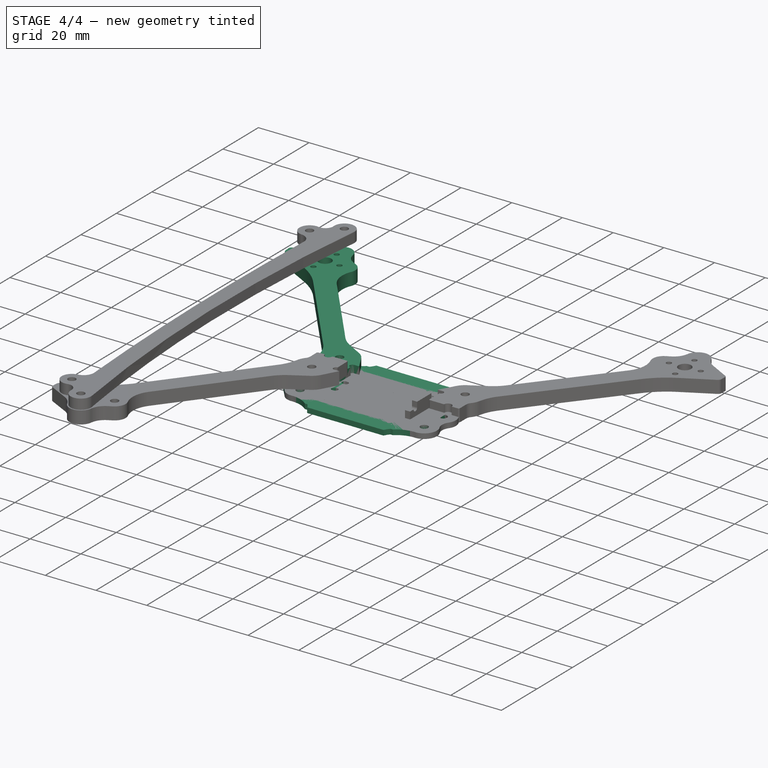
[diagram: stage 4 of 4 — iso view after this stage's code; geometry added in this stage tinted green]
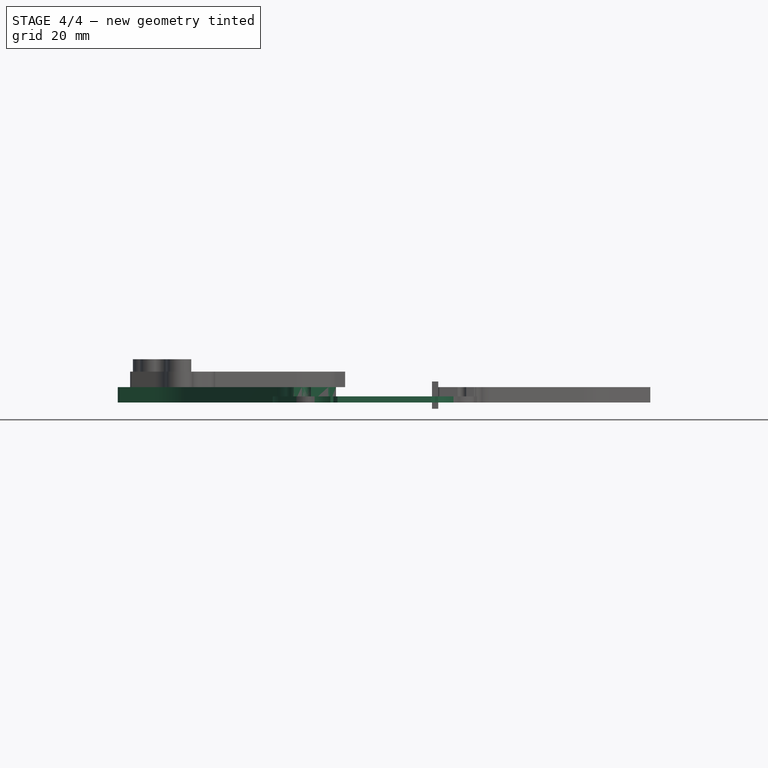
[diagram: stage 4 of 4 — front view after this stage's code; geometry added in this stage tinted green]
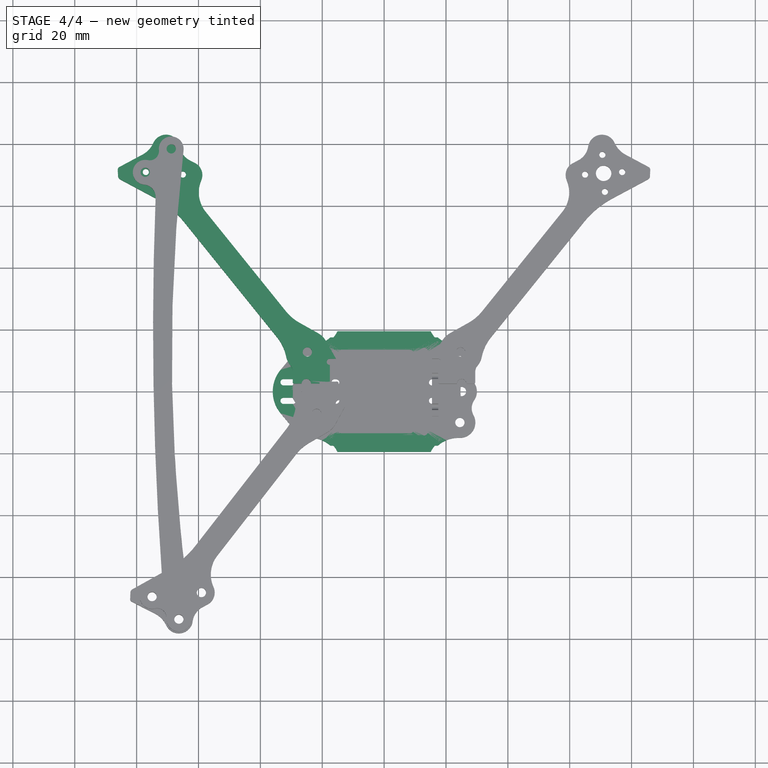
[diagram: stage 4 of 4 — top view after this stage's code; geometry added in this stage tinted green]
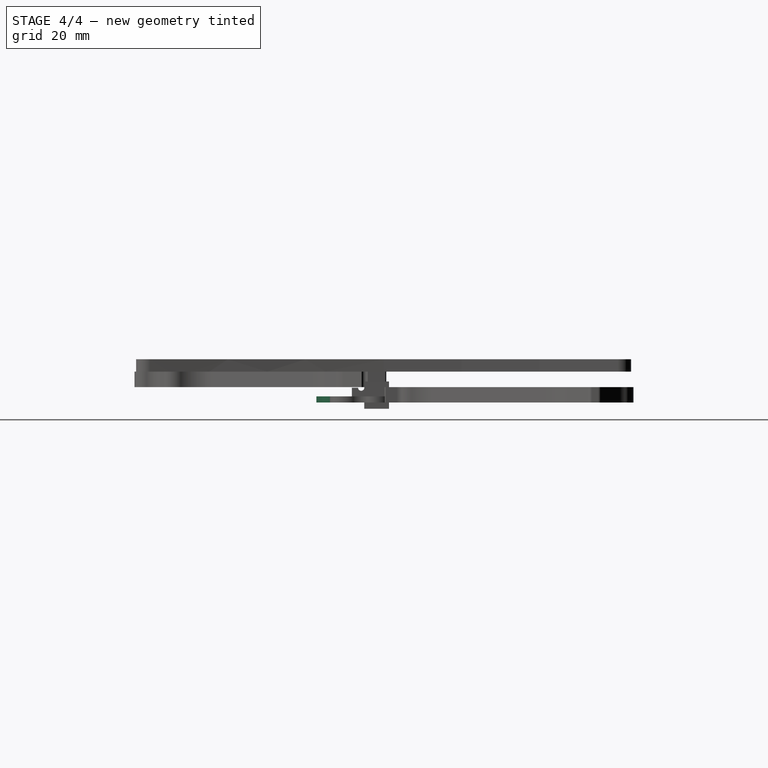
[diagram: stage 4 of 4 — right view after this stage's code; geometry added in this stage tinted green]
FEATURE [Sketcher::SketchObject] Sketch007  label="top_wide001"
  FullyConstrained = true
  MapMode = 5
  expr: Constraints[0] = <<params>>.stands_spacing / 2
  expr: Constraints[1] = <<params>>.stands_length / 2
  expr: Constraints[29] = <<params>>.plate_top_width_WIDE
  expr: Constraints[3] = <<params>>.screw_dia / 2
  expr: Constraints[8] = <<params>>.screw_dia + 1 mm
  sketch-geometry (53):
    g0: Circle CenterX=-24.5 CenterY=-10 CenterZ=0 NormalX=0 NormalY=0 NormalZ=1 AngleXU=0 Radius=1.5
    g1: GeomPoint X=0 Y=0 Z=0
    g2: Circle CenterX=-24.5 CenterY=10 CenterZ=0 NormalX=0 NormalY=0 NormalZ=1 AngleXU=0 Radius=1.5
    g3: Circle CenterX=24.5 CenterY=-10 CenterZ=0 NormalX=0 NormalY=0 NormalZ=1 AngleXU=0 Radius=1.5
    g4: Circle CenterX=24.5 CenterY=10 CenterZ=0 NormalX=0 NormalY=0 NormalZ=1 AngleXU=0 Radius=1.5
    g5: ArcOfCircle CenterX=-24.5 CenterY=-10 CenterZ=0 NormalX=0 NormalY=0 NormalZ=1 AngleXU=0 Radius=4 StartAngle=1.5708 EndAngle=4.74811
    g6: ArcOfCircle CenterX=-24.5 CenterY=10 CenterZ=0 NormalX=0 NormalY=0 NormalZ=1 AngleXU=0 Radius=4 StartAngle=1.53507 EndAngle=4.71239
    g7: LineSegment StartX=-20 StartY=-4.5 StartZ=0 EndX=-20 EndY=4.5 EndZ=0
    g8: ArcOfCircle CenterX=24.5 CenterY=10 CenterZ=0 NormalX=0 NormalY=0 NormalZ=1 AngleXU=0 Radius=4 StartAngle=5.55346 EndAngle=7.8897
    g9: ArcOfCircle CenterX=24.5 CenterY=-10 CenterZ=0 NormalX=0 NormalY=0 NormalZ=1 AngleXU=0 Radius=4 StartAngle=4.67667 EndAngle=7.01291
    g10: ArcOfCircle CenterX=-24 CenterY=-23.9911 CenterZ=0 NormalX=0 NormalY=0 NormalZ=1 AngleXU=0 Radius=10 StartAngle=0.465765 EndAngle=1.60652
    g11: ArcOfCircle CenterX=-24 CenterY=23.9911 CenterZ=0 NormalX=0 NormalY=0 NormalZ=1 AngleXU=0 Radius=10 StartAngle=4.67667 EndAngle=5.81742
    g12: ArcOfCircle CenterX=24 CenterY=23.9911 CenterZ=0 NormalX=0 NormalY=0 NormalZ=1 AngleXU=0 Radius=10 StartAngle=3.60736 EndAngle=4.74811
    g13: ArcOfCircle CenterX=24 CenterY=-23.9911 CenterZ=0 NormalX=0 NormalY=0 NormalZ=1 AngleXU=0 Radius=10 StartAngle=1.53507 EndAngle=2.67583
    g14: LineSegment StartX=-15.0652 StartY=-19.5 StartZ=0 EndX=15.0652 EndY=-19.5 EndZ=0
    g15: LineSegment StartX=-15.0652 StartY=19.5 StartZ=0 EndX=15.0652 EndY=19.5 EndZ=0
    g16: ArcOfCircle CenterX=35.6803 CenterY=-1.5e-15 CenterZ=0 NormalX=0 NormalY=0 NormalZ=1 AngleXU=0 Radius=11 StartAngle=2.41186 EndAngle=3.87132
    g17: LineSegment StartX=-24.5 StartY=-6 StartZ=0 EndX=-21.5 EndY=-6 EndZ=0
    g18: LineSegment StartX=-24.5 StartY=6 StartZ=0 EndX=-21.5 EndY=6 EndZ=0
    g19: ArcOfCircle CenterX=-21.5 CenterY=4.5 CenterZ=0 NormalX=0 NormalY=0 NormalZ=1 AngleXU=0 Radius=1.5 StartAngle=0 EndAngle=1.5708
    g20: ArcOfCircle CenterX=-21.5 CenterY=-4.5 CenterZ=0 NormalX=0 NormalY=0 NormalZ=1 AngleXU=0 Radius=1.5 StartAngle=4.71239 EndAngle=6.28319
    g21: ArcOfCircle CenterX=-16 CenterY=-3 CenterZ=0 NormalX=0 NormalY=0 NormalZ=1 AngleXU=0 Radius=1 StartAngle=1.5708 EndAngle=4.71239
    g22: ArcOfCircle CenterX=-12 CenterY=-3 CenterZ=0 NormalX=0 NormalY=0 NormalZ=1 AngleXU=0 Radius=1 StartAngle=4.71239 EndAngle=7.85398
    g23: LineSegment StartX=-16 StartY=-4 StartZ=0 EndX=-12 EndY=-4 EndZ=0
    g24: LineSegment StartX=-12 StartY=-2 StartZ=0 EndX=-16 EndY=-2 EndZ=0
    g25: ArcOfCircle CenterX=-16 CenterY=3 CenterZ=0 NormalX=0 NormalY=0 NormalZ=1 AngleXU=0 Radius=1 StartAngle=1.5708 EndAngle=4.71239
    g26: ArcOfCircle CenterX=-12 CenterY=3 CenterZ=0 NormalX=0 NormalY=0 NormalZ=1 AngleXU=0 Radius=1 StartAngle=4.71239 EndAngle=7.85398
    g27: LineSegment StartX=-16 StartY=4 StartZ=0 EndX=-12 EndY=4 EndZ=0
    g28: LineSegment StartX=-12 StartY=2 StartZ=0 EndX=-16 EndY=2 EndZ=0
    g29: LineSegment StartX=-1.27899 StartY=-3.96029 StartZ=0 EndX=17.9269 EndY=-9.54009 EndZ=0
    g30: LineSegment StartX=19.1358 StartY=-8.21215 StartZ=0 EndX=16.93 EndY=-2.63235 EndZ=0
    g31: LineSegment StartX=-1 StartY=-2 StartZ=0 EndX=16 EndY=-2 EndZ=0
    g32: ArcOfCircle CenterX=18.2059 CenterY=-8.57979 CenterZ=0 NormalX=0 NormalY=0 NormalZ=1 AngleXU=0 Radius=1 StartAngle=4.42965 EndAngle=6.65966
    g33: ArcOfCircle CenterX=-1 CenterY=-3 CenterZ=0 NormalX=0 NormalY=0 NormalZ=1 AngleXU=0 Radius=1 StartAngle=1.5708 EndAngle=4.42965
    g34: ArcOfCircle CenterX=16 CenterY=-3 CenterZ=0 NormalX=0 NormalY=0 NormalZ=1 AngleXU=0 Radius=1 StartAngle=0.376478 EndAngle=1.5708
    g35: LineSegment StartX=-1.27899 StartY=3.96029 StartZ=0 EndX=17.9269 EndY=9.54009 EndZ=0
    g36: LineSegment StartX=19.1358 StartY=8.21215 StartZ=0 EndX=16.93 EndY=2.63235 EndZ=0
    g37: LineSegment StartX=-1 StartY=2 StartZ=0 EndX=16 EndY=2 EndZ=0
    g38: ArcOfCircle CenterX=18.2059 CenterY=8.57979 CenterZ=0 NormalX=0 NormalY=0 NormalZ=1 AngleXU=0 Radius=1 StartAngle=5.90671 EndAngle=8.13672
    g39: ArcOfCircle CenterX=-1 CenterY=3 CenterZ=0 NormalX=0 NormalY=0 NormalZ=1 AngleXU=0 Radius=1 StartAngle=1.85354 EndAngle=4.71239
    g40: ArcOfCircle CenterX=16 CenterY=3 CenterZ=0 NormalX=0 NormalY=0 NormalZ=1 AngleXU=0 Radius=1 StartAngle=4.71239 EndAngle=5.90671
    g41: LineSegment StartX=-3.91869 StartY=-8.03787 StartZ=0 EndX=-16.2726 EndY=-11.5379 EndZ=0
    g42: ArcOfCircle CenterX=-16 CenterY=-12.5 CenterZ=0 NormalX=0 NormalY=0 NormalZ=1 AngleXU=0 Radius=1 StartAngle=1.84687 EndAngle=4.71239
    g43: LineSegment StartX=-16 StartY=-13.5 StartZ=0 EndX=8.40105 EndY=-13.5 EndZ=0
    g44: ArcOfCircle CenterX=8.40105 CenterY=-12.5 CenterZ=0 NormalX=0 NormalY=0 NormalZ=1 AngleXU=0 Radius=1 StartAngle=4.71239 EndAngle=7.57124
    g45: LineSegment StartX=8.68004 StartY=-11.5397 StartZ=0 EndX=-3.36711 EndY=-8.03971 EndZ=0
    g46: ArcOfCircle CenterX=-3.6461 CenterY=-9 CenterZ=0 NormalX=0 NormalY=0 NormalZ=1 AngleXU=0 Radius=1 StartAngle=1.28805 EndAngle=1.84687
    g47: LineSegment StartX=-3.91869 StartY=8.03787 StartZ=0 EndX=-16.2726 EndY=11.5379 EndZ=0
    g48: ArcOfCircle CenterX=-16 CenterY=12.5 CenterZ=0 NormalX=0 NormalY=0 NormalZ=1 AngleXU=0 Radius=1 StartAngle=1.5708 EndAngle=4.43631
    g49: LineSegment StartX=-16 StartY=13.5 StartZ=0 EndX=8.40105 EndY=13.5 EndZ=0
    g50: ArcOfCircle CenterX=8.40105 CenterY=12.5 CenterZ=0 NormalX=0 NormalY=0 NormalZ=1 AngleXU=0 Radius=1 StartAngle=4.99513 EndAngle=7.85398
    g51: LineSegment StartX=8.68004 StartY=11.5397 StartZ=0 EndX=-3.36711 EndY=8.03971 EndZ=0
    g52: ArcOfCircle CenterX=-3.6461 CenterY=9 CenterZ=0 NormalX=0 NormalY=0 NormalZ=1 AngleXU=0 Radius=1 StartAngle=4.43631 EndAngle=4.99513
  constraints (121):
    c: Distance(g0,g-1) = 10
    c: Distance(g0,g-2) = 24.5
    c: Coincident(g1,g-1)
    c: Radius(g0) = 1.5
    c: Symmetric(g2,g0,g-1)
    c: Symmetric(g0,g3,g-2)
    c: Symmetric(g4,g2,g-2)
    c: Coincident(g5,g0)
    c: Radius(g5) = 4
    c: Symmetric(g6,g5,g-1)
    c: Vertical(g7)
    c: Symmetric(g9,g5,g-2)
    c: Coincident(g8,g4)
    c: Coincident(g9,g3)
    c: Equal(g2,g4)
    c: Equal(g4,g3)
    c: Equal(g3,g0)
    c: Tangent(g11,g6) = 1.5708
    c: Tangent(g10,g5) = 1.5708
    c: Symmetric(g10,g11,g-1)
    c: Radius(g10) = 10
    c: Symmetric(g12,g11,g-2)
    c: Equal(g10,g11)
    c: Equal(g11,g12)
    c: Coincident(g14,g10)
    c: Coincident(g14,g13)
    c: Coincident(g15,g11)
    c: Coincident(g15,g12)
    c: Horizontal(g15)
    c: DistanceY(g10,g11) = 39
    c: Tangent(g12,g8) = 1.5708
    c: Tangent(g13,g9) = 1.5708
    c: Tangent(g16,g8) = 1.5708
    c: Tangent(g16,g9) = 1.5708
    c: Radius(g16) = 11
    c: Coincident(g6,g2)
    c: Symmetric(g13,g10,g-2)
    c: Horizontal(g17)
    c: Vertical(g18,g17)
    c: Tangent(g17,g5) = 1.5708
    c: Tangent(g18,g6) = -1.5708
    c: Tangent(g20,g17) = -1.5708
    c: Tangent(g19,g18) = 1.5708
    c: Tangent(g19,g7) = -1.5708
    c: Tangent(g20,g7) = -1.5708
    c: Radius(g20) = 1.5
    c: Tangent(g21,g23) = -1.5708
    c: Tangent(g23,g22) = -1.5708
    c: Tangent(g22,g24) = -1.5708
    c: Tangent(g24,g21) = -1.5708
    c: Equal(g21,g22)
    c: Horizontal(g23)
    c: Radius(g22) = 1
    c: Distance(g21,g22) = 4
    c: Distance(g22,g-1) = 3
    c: Distance(g21,g7) = 4
    c: Tangent(g25,g27) = 1.5708
    c: Tangent(g27,g26) = 1.5708
    c: Tangent(g26,g28) = 1.5708
    c: Tangent(g28,g25) = 1.5708
    c: Equal(g25,g26)
    c: Horizontal(g27)
    c: Equal(g28,g24)
    c: Equal(g26,g22)
    c: Symmetric(g22,g26,g-1)
    c: Horizontal(g31)
    c: Equal(g34,g33)
    c: Equal(g33,g32)
    c: Radius(g34) = 1
    c: Horizontal(g33,g22)
    c: Tangent(g29,g33) = -1.5708
    c: Tangent(g31,g33) = 1.5708
    c: Tangent(g30,g34) = -1.5708
    c: Tangent(g31,g34) = 1.5708
    c: Tangent(g30,g32) = -1.5708
    c: Tangent(g29,g32) = -1.5708
    c: Horizontal(g37)
    c: Equal(g39,g38)
    c: Tangent(g35,g39) = 1.5708
    c: Tangent(g37,g39) = -1.5708
    c: Tangent(g36,g40) = 1.5708
    c: Tangent(g37,g40) = -1.5708
    c: Tangent(g36,g38) = 1.5708
    c: Tangent(g35,g38) = 1.5708
    c: Symmetric(g32,g38,g-1)
    c: Symmetric(g40,g34,g-1)
    c: Symmetric(g33,g39,g-1)
    c: Distance(g32,g34) = 6
    c: Distance(g32,g33) = 20
    c: Distance(g33,g34) = 17
    c: DistanceX(g22,g33) = 11
    c: Tangent(g41,g42) = -1.5708
    c: Horizontal(g43)
    c: Tangent(g43,g44) = -1.5708
    c: Tangent(g45,g46) = -1.5708
    c: Equal(g42,g46)
    c: Equal(g46,g44)
    c: Radius(g44) = 1
    c: Distance(g43,g14) = 6
    c: Parallel(g45,g29)
    c: Distance(g44,g29) = 4.5
    c: Vertical(g42,g21)
    c: Tangent(g42,g43) = -1.5708
    c: Tangent(g46,g41) = -1.5708
    c: Tangent(g44,g45) = -1.5708
    c: Distance(g46,g43) = 4.5
    c: Tangent(g47,g48) = 1.5708
    c: Horizontal(g49)
    c: Tangent(g49,g50) = 1.5708
    c: Tangent(g51,g52) = 1.5708
    c: Equal(g52,g50)
    c: Tangent(g48,g49) = 1.5708
    c: Tangent(g52,g47) = 1.5708
    c: Tangent(g50,g51) = 1.5708
    c: Symmetric(g44,g50,g-1)
    c: Symmetric(g52,g46,g-1)
    c: Symmetric(g48,g42,g-1)
    c: Equal(g34,g40)
    c: Equal(g46,g52)
    c: DistanceX(g0,g7) = 4.5
    c: DistanceX(g0,g10) = 0.5
FEATURE [PartDesign::Pad] Pad007  label="top_wide_Pad007"
  Direction = (0,0,1)
  Length = 2
  Length2 = 10
  Profile = -> Sketch007
  ReferenceAxis = -> Sketch007 [N_Axis]
  Type = 0
FEATURE [PartDesign::Body] Body008  label="twiggle_v2_003"
  Group = -> [Sketch008,Pad008]
  Origin = -> Origin008
  Placement = pos=(-17.5,0,0) rot=(0,0,1;0rad)
  Tip = -> Pad008
FEATURE [Part::Part2DObjectPython] Shape2DView001  label="twiggle_v2_2DView001"  # Draft 2D object (typed FeaturePython)
  AutoUpdate = true
  Base = -> Body008
  Clip = false
  FuseArch = false
  HiddenLines = false
  InPlace = true
  OnlySolids = false
  Projection = (-1,2.98023e-08,-2.08616e-07)
  ProjectionMode = 0
  SegmentLength = 0.05
  Tessellation = false
  VisibleOnly = false
FEATURE [Spreadsheet::Sheet] Spreadsheet  label="params"
  cells = A1='drill bit; B1(drill_bit_dia)==2 mm; A2='screw dia; B2(screw_dia)==3 mm; A3='carbon insert dia; B3(carbon_insert_dia)=4.5; A4='stack mount; B4(stack_mount)==20 mm; C4='not used!; A5='stack screw dia; B5(stack_screw_dia)=3; A6='stands spacing; B6(stands_spacing)=20; A7='stands length; B7(stands_length)=49; A8='plate top width; B8(plate_top_width)=35; A9='plate bottom width; B9(plate_bottom_width)=28; A10='plato top width WIDE; B10(plate_top_width_WIDE)=39; A11='plate middle width WIDE; B11(plate_middle_width_WIDE)=35
FEATURE [Sketcher::SketchObject] Sketch009  label="middle_30x_003"
  FullyConstrained = true
  MapMode = 5
  Support = -> [XY_Plane010]
  expr: Constraints[0] = <<params>>.stands_spacing / 2
  expr: Constraints[151] = <<params>>.plate_middle_width_WIDE
  expr: Constraints[17] = <<params>>.stack_screw_dia / 2
  expr: Constraints[1] = <<params>>.stands_length / 2
  expr: Constraints[21] = <<params>>.carbon_insert_dia / 2
  expr: Constraints[27] = <<params>>.carbon_insert_dia / 2
  expr: Constraints[33] = <<params>>.screw_dia + 2 mm
  expr: Constraints[61] = <<params>>.screw_dia + 2 mm
  expr: Constraints[62] = <<params>>.screw_dia + 1.5 mm
  expr: Constraints[97] = <<params>>.drill_bit_dia / 2
  sketch-geometry (71):
    g0: Circle CenterX=-25 CenterY=5e-16 CenterZ=0 NormalX=0 NormalY=0 NormalZ=1 AngleXU=0 Radius=2.25
    g1: Circle CenterX=-24.5 CenterY=-10 CenterZ=0 NormalX=0 NormalY=0 NormalZ=1 AngleXU=0 Radius=2.25
    g2: LineSegment StartX=-12.75 StartY=-12.75 StartZ=0 EndX=-12.75 EndY=12.75 EndZ=0
    g3: LineSegment StartX=-12.75 StartY=12.75 StartZ=0 EndX=12.75 EndY=12.75 EndZ=0
    g4: LineSegment StartX=12.75 StartY=12.75 StartZ=0 EndX=12.75 EndY=-12.75 EndZ=0
    g5: LineSegment StartX=12.75 StartY=-12.75 StartZ=0 EndX=-12.75 EndY=-12.75 EndZ=0
    g6: GeomPoint X=0 Y=0 Z=0
    g7: Circle CenterX=12.75 CenterY=-12.75 CenterZ=0 NormalX=0 NormalY=0 NormalZ=1 AngleXU=0 Radius=1.5
    g8: Circle CenterX=-12.75 CenterY=12.75 CenterZ=0 NormalX=0 NormalY=0 NormalZ=1 AngleXU=0 Radius=1.5
    g9: Circle CenterX=12.75 CenterY=12.75 CenterZ=0 NormalX=0 NormalY=0 NormalZ=1 AngleXU=0 Radius=1.5
    g10: Circle CenterX=-24.5 CenterY=10 CenterZ=0 NormalX=0 NormalY=0 NormalZ=1 AngleXU=0 Radius=2.25
    g11: Circle CenterX=24.5 CenterY=-10 CenterZ=0 NormalX=0 NormalY=0 NormalZ=1 AngleXU=0 Radius=2.25
    g12: Circle CenterX=24.5 CenterY=10 CenterZ=0 NormalX=0 NormalY=0 NormalZ=1 AngleXU=0 Radius=2.25
    g13: Circle CenterX=25 CenterY=5e-16 CenterZ=0 NormalX=0 NormalY=0 NormalZ=1 AngleXU=0 Radius=2.25
    g14: ArcOfCircle CenterX=-24.5 CenterY=-10 CenterZ=0 NormalX=0 NormalY=0 NormalZ=1 AngleXU=0 Radius=5 StartAngle=3.83412 EndAngle=4.74573
    g15: ArcOfCircle CenterX=-24 CenterY=-24.9917 CenterZ=0 NormalX=0 NormalY=0 NormalZ=1 AngleXU=0 Radius=10 StartAngle=0.846803 EndAngle=1.60414
    g16: ArcOfCircle CenterX=-25 CenterY=5e-16 CenterZ=0 NormalX=0 NormalY=0 NormalZ=1 AngleXU=0 Radius=11 StartAngle=3.14159 EndAngle=3.83412
    g17: LineSegment StartX=-33.466 StartY=-7.0233 StartZ=0 EndX=-28.3482 EndY=-13.1924 EndZ=0
    g18: LineSegment StartX=-33.466 StartY=7.0233 StartZ=0 EndX=-28.3482 EndY=13.1924 EndZ=0
    g19: ArcOfCircle CenterX=-24.5 CenterY=10 CenterZ=0 NormalX=0 NormalY=0 NormalZ=1 AngleXU=0 Radius=5 StartAngle=1.53746 EndAngle=2.44907
    g20: ArcOfCircle CenterX=-24 CenterY=24.9917 CenterZ=0 NormalX=0 NormalY=0 NormalZ=1 AngleXU=0 Radius=10 StartAngle=4.67905 EndAngle=5.43638
    g21: ArcOfCircle CenterX=24 CenterY=-24.9917 CenterZ=0 NormalX=0 NormalY=0 NormalZ=1 AngleXU=0 Radius=10 StartAngle=1.53746 EndAngle=2.29479
    g22: ArcOfCircle CenterX=24 CenterY=24.9917 CenterZ=0 NormalX=0 NormalY=0 NormalZ=1 AngleXU=0 Radius=10 StartAngle=3.9884 EndAngle=4.74573
    g23: ArcOfCircle CenterX=-25 CenterY=-3.1e-15 CenterZ=0 NormalX=0 NormalY=0 NormalZ=1 AngleXU=0 Radius=11 StartAngle=2.44907 EndAngle=3.14159
    g24: Circle CenterX=-12.75 CenterY=-12.75 CenterZ=0 NormalX=0 NormalY=0 NormalZ=1 AngleXU=0 Radius=1.5
    g25: ArcOfCircle CenterX=24.5 CenterY=-10 CenterZ=0 NormalX=0 NormalY=0 NormalZ=1 AngleXU=0 Radius=5 StartAngle=4.67905 EndAngle=6.78826
    g26: ArcOfCircle CenterX=25 CenterY=5e-16 CenterZ=0 NormalX=0 NormalY=0 NormalZ=1 AngleXU=0 Radius=5 StartAngle=5.67819 EndAngle=6.88818
    g27: ArcOfCircle CenterX=24.5 CenterY=10 CenterZ=0 NormalX=0 NormalY=0 NormalZ=1 AngleXU=0 Radius=5 StartAngle=5.77811 EndAngle=7.88732
    g28: ArcOfCircle CenterX=32.8138 CenterY=5.40319 CenterZ=0 NormalX=0 NormalY=0 NormalZ=1 AngleXU=0 Radius=4.5 StartAngle=2.63652 EndAngle=3.74659
    g29: ArcOfCircle CenterX=32.8138 CenterY=-5.40319 CenterZ=0 NormalX=0 NormalY=0 NormalZ=1 AngleXU=0 Radius=4.5 StartAngle=2.5366 EndAngle=3.64667
    g30: ArcOfCircle CenterX=-29.5 CenterY=-3 CenterZ=0 NormalX=0 NormalY=0 NormalZ=1 AngleXU=0 Radius=1 StartAngle=4.71239 EndAngle=7.85398
    g31: ArcOfCircle CenterX=-32.5 CenterY=-3 CenterZ=0 NormalX=0 NormalY=0 NormalZ=1 AngleXU=0 Radius=1 StartAngle=1.5708 EndAngle=4.71239
    g32: LineSegment StartX=-29.5 StartY=-2 StartZ=0 EndX=-32.5 EndY=-2 EndZ=0
    g33: LineSegment StartX=-32.5 StartY=-4 StartZ=0 EndX=-29.5 EndY=-4 EndZ=0
    g34: ArcOfCircle CenterX=-32.5 CenterY=3 CenterZ=0 NormalX=0 NormalY=0 NormalZ=1 AngleXU=0 Radius=1 StartAngle=1.5708 EndAngle=4.71239
    g35: LineSegment StartX=-29.5 StartY=2 StartZ=0 EndX=-32.5 EndY=2 EndZ=0
    g36: LineSegment StartX=-32.5 StartY=4 StartZ=0 EndX=-29.5 EndY=4 EndZ=0
    g37: ArcOfCircle CenterX=-29.5 CenterY=3 CenterZ=0 NormalX=0 NormalY=0 NormalZ=1 AngleXU=0 Radius=1 StartAngle=4.71239 EndAngle=7.85398
    g38: LineSegment StartX=-17.5 StartY=1.95 StartZ=0 EndX=-17.5 EndY=-1.95 EndZ=0
    g39: LineSegment StartX=-15.5 StartY=-1.95 StartZ=0 EndX=-15.5 EndY=1.95 EndZ=0
    g40: ArcOfCircle CenterX=-17.5 CenterY=-2.95 CenterZ=0 NormalX=0 NormalY=0 NormalZ=1 AngleXU=0 Radius=1 StartAngle=1.5708 EndAngle=4.71239
    g41: ArcOfCircle CenterX=-15.5 CenterY=-2.95 CenterZ=0 NormalX=0 NormalY=0 NormalZ=1 AngleXU=0 Radius=1 StartAngle=4.71239 EndAngle=7.85398
    g42: LineSegment StartX=-17.5 StartY=-3.95 StartZ=0 EndX=-15.5 EndY=-3.95 EndZ=0
    g43: ArcOfCircle CenterX=-17.5 CenterY=2.95 CenterZ=0 NormalX=0 NormalY=0 NormalZ=1 AngleXU=0 Radius=1 StartAngle=1.5708 EndAngle=4.71239
    g44: ArcOfCircle CenterX=-15.5 CenterY=2.95 CenterZ=0 NormalX=0 NormalY=0 NormalZ=1 AngleXU=0 Radius=1 StartAngle=4.71239 EndAngle=7.85398
    g45: LineSegment StartX=-15.5 StartY=3.95 StartZ=0 EndX=-17.5 EndY=3.95 EndZ=0
    g46: LineSegment StartX=17.5 StartY=1.95 StartZ=0 EndX=17.5 EndY=-1.95 EndZ=0
    g47: LineSegment StartX=15.5 StartY=-1.95 StartZ=0 EndX=15.5 EndY=1.95 EndZ=0
    g48: ArcOfCircle CenterX=17.5 CenterY=-2.95 CenterZ=0 NormalX=0 NormalY=0 NormalZ=1 AngleXU=0 Radius=1 StartAngle=4.71239 EndAngle=7.85398
    g49: ArcOfCircle CenterX=15.5 CenterY=-2.95 CenterZ=0 NormalX=0 NormalY=0 NormalZ=1 AngleXU=0 Radius=1 StartAngle=1.5708 EndAngle=4.71239
    g50: LineSegment StartX=17.5 StartY=-3.95 StartZ=0 EndX=15.5 EndY=-3.95 EndZ=0
    g51: ArcOfCircle CenterX=17.5 CenterY=2.95 CenterZ=0 NormalX=0 NormalY=0 NormalZ=1 AngleXU=0 Radius=1 StartAngle=4.71239 EndAngle=7.85398
    g52: ArcOfCircle CenterX=15.5 CenterY=2.95 CenterZ=0 NormalX=0 NormalY=0 NormalZ=1 AngleXU=0 Radius=1 StartAngle=1.5708 EndAngle=4.71239
    g53: LineSegment StartX=15.5 StartY=3.95 StartZ=0 EndX=17.5 EndY=3.95 EndZ=0
    g54: GeomPoint X=0 Y=0 Z=0
    g55: LineSegment StartX=6 StartY=4.5 StartZ=0 EndX=6 EndY=-4.5 EndZ=0
    g56: LineSegment StartX=5 StartY=-5.5 StartZ=0 EndX=-5 EndY=-5.5 EndZ=0
    g57: LineSegment StartX=-6 StartY=-4.5 StartZ=0 EndX=-6 EndY=4.5 EndZ=0
    g58: LineSegment StartX=-5 StartY=5.5 StartZ=0 EndX=5 EndY=5.5 EndZ=0
    g59: ArcOfCircle CenterX=-5 CenterY=-4.5 CenterZ=0 NormalX=0 NormalY=0 NormalZ=1 AngleXU=0 Radius=1 StartAngle=3.14159 EndAngle=4.71239
    g60: ArcOfCircle CenterX=5 CenterY=-4.5 CenterZ=0 NormalX=0 NormalY=0 NormalZ=1 AngleXU=0 Radius=1 StartAngle=4.71239 EndAngle=6.28319
    g61: ArcOfCircle CenterX=5 CenterY=4.5 CenterZ=0 NormalX=0 NormalY=0 NormalZ=1 AngleXU=0 Radius=1 StartAngle=3e-16 EndAngle=1.5708
    g62: ArcOfCircle CenterX=-5 CenterY=4.5 CenterZ=0 NormalX=0 NormalY=0 NormalZ=1 AngleXU=0 Radius=1 StartAngle=1.5708 EndAngle=3.14159
    g63: LineSegment StartX=-17.3762 StartY=-17.5 StartZ=0 EndX=17.3762 EndY=-17.5 EndZ=0
    g64: LineSegment StartX=-17.3762 StartY=17.5 StartZ=0 EndX=17.3762 EndY=17.5 EndZ=0
    g65: GeomPoint X=0 Y=0 Z=0
    g66: LineSegment StartX=-17 StartY=17 StartZ=0 EndX=-17 EndY=-17 EndZ=0
    g67: LineSegment StartX=-17 StartY=-17 StartZ=0 EndX=17 EndY=-17 EndZ=0
    g68: LineSegment StartX=17 StartY=-17 StartZ=0 EndX=17 EndY=17 EndZ=0
    g69: LineSegment StartX=17 StartY=17 StartZ=0 EndX=-17 EndY=17 EndZ=0
    g70: GeomPoint X=0 Y=0 Z=0
  constraints (168):
    c: Distance(g1,g-1) = 10
    c: Distance(g1,g-2) = 24.5
    c: Coincident(g2,g3)
    c: Coincident(g3,g4)
    c: Coincident(g4,g5)
    c: Coincident(g5,g2)
    c: Horizontal(g3)
    c: Horizontal(g5)
    c: Vertical(g2)
    c: Vertical(g4)
    c: Symmetric(g3,g2,g6)
    c: Coincident(g6,g-1)
    c: Equal(g3,g2)
    c: DistanceX(g5,g5) = 25.5
    c: Coincident(g7,g4)
    c: Coincident(g8,g2)
    c: Coincident(g9,g3)
    c: Radius(g9) = 1.5
    c: Equal(g12,g10)
    c: Equal(g10,g1)
    c: Equal(g1,g11)
    c: Radius(g1) = 2.25
    c: Symmetric(g10,g1,g-1)
    c: Symmetric(g1,g11,g-2)
    c: Symmetric(g12,g10,g-2)
    c: Equal(g0,g13)
    c: Symmetric(g13,g0,g-2)
    c: Radius(g0) = 2.25
    c: Coincident(g14,g1)
    c: Coincident(g16,g0)
    c: Tangent(g15,g14) = 1.5708
    c: Tangent(g17,g14) = -1.5708
    c: Tangent(g17,g16) = -1.5708
    c: Radius(g14) = 5
    c: Radius(g16) = 11
    c: Radius(g15) = 10
    c: Tangent(g20,g19) = 1.5708
    c: Tangent(g18,g19) = 1.5708
    c: Symmetric(g14,g18,g-1)
    c: Symmetric(g19,g14,g-1)
    c: Symmetric(g14,g21,g-2)
    c: PointOnObject(g16,g-1)
    c: Tangent(g23,g18) = 1.5708
    c: Coincident(g23,g16)
    c: Symmetric(g16,g18,g-1)
    c: Symmetric(g22,g19,g-2)
    c: Coincident(g24,g2)
    c: Equal(g8,g24)
    c: Equal(g24,g7)
    c: Equal(g7,g9)
    c: Coincident(g25,g11)
    c: Coincident(g26,g13)
    c: Coincident(g27,g12)
    c: Tangent(g29,g25) = 1.5708
    c: Tangent(g29,g26) = 1.5708
    c: Tangent(g25,g21) = 1.5708
    c: Tangent(g28,g26) = 1.5708
    c: Tangent(g28,g27) = 1.5708
    c: Tangent(g27,g22) = 1.5708
    c: Symmetric(g27,g25,g-1)
    c: Symmetric(g26,g26,g-1)
    c: Radius(g26) = 5
    c: Radius(g29) = 4.5
    c: Tangent(g30,g32) = -1.5708
    c: Tangent(g32,g31) = -1.5708
    c: Tangent(g31,g33) = -1.5708
    c: Tangent(g33,g30) = -1.5708
    c: Equal(g30,g31)
    c: Horizontal(g32)
    c: Distance(g30,g-1) = 3
    c: Distance(g31,g30) = 3
    c: Radius(g30) = 1
    c: DistanceX(g30,g0) = 4.5
    c: Tangent(g37,g35) = 1.5708
    c: Tangent(g35,g34) = 1.5708
    c: Tangent(g34,g36) = 1.5708
    c: Tangent(g36,g37) = 1.5708
    c: Equal(g37,g34)
    c: Horizontal(g35)
    c: Vertical(g34,g31)
    c: Equal(g34,g31)
    c: Symmetric(g37,g30,g-1)
    c: Vertical(g39)
    c: Tangent(g40,g42) = -1.5708
    c: Tangent(g42,g41) = -1.5708
    c: Horizontal(g42)
    c: Tangent(g44,g45) = -1.5708
    c: Tangent(g45,g43) = -1.5708
    c: Vertical(g44,g39)
    c: Vertical(g39,g41)
    c: Vertical(g40,g38)
    c: Vertical(g38,g43)
    c: Equal(g45,g42)
    c: Coincident(g39,g44)
    c: Coincident(g38,g43)
    c: Coincident(g38,g40)
    c: Coincident(g39,g41)
    c: Radius(g40) = 1
    c: Distance(g42) = 2
    c: Equal(g40,g41)
    c: Equal(g41,g44)
    c: Equal(g44,g43)
    c: Symmetric(g38,g38,g-1)
    c: DistanceY(g41,g44) = 7.9
    c: DistanceX(g0,g38) = 7.5
    c: Tangent(g48,g50) = 1.5708
    c: Tangent(g50,g49) = 1.5708
    c: Horizontal(g50)
    c: Tangent(g52,g53) = 1.5708
    c: Tangent(g53,g51) = 1.5708
    c: Equal(g53,g50)
    c: Coincident(g47,g52)
    c: Coincident(g46,g51)
    c: Coincident(g46,g48)
    c: Coincident(g47,g49)
    c: Equal(g52,g51)
    c: Equal(g51,g48)
    c: Equal(g49,g40)
    c: Symmetric(g47,g39,g-2)
    c: Symmetric(g46,g38,g-2)
    c: Vertical(g46)
    c: Perpendicular(g52,g47)
    c: Perpendicular(g51,g46)
    c: Equal(g46,g47)
    c: Perpendicular(g49,g47)
    c: Symmetric(g47,g39,g-2)
    c: Coincident(g54,g6)
    c: Symmetric(g55,g55,g-1)
    c: Symmetric(g55,g57,g-2)
    c: Symmetric(g56,g56,g-2)
    c: Symmetric(g56,g58,g-1)
    c: DistanceX(g57,g55) = 12
    c: DistanceY(g56,g58) = 11
    c: Tangent(g59,g57) = 1.5708
    c: Tangent(g59,g56) = 1.5708
    c: Tangent(g60,g56) = 1.5708
    c: Tangent(g60,g55) = 1.5708
    c: Tangent(g61,g55) = 1.5708
    c: Tangent(g61,g58) = 1.5708
    c: Tangent(g62,g57) = 1.5708
    c: Tangent(g62,g58) = 1.5708
    c: Radius(g60) = 1
    c: Equal(g62,g60)
    c: DistanceX(g0,g1) = 0.5
    c: Symmetric(g20,g15,g-1)
    c: Coincident(g63,g15)
    c: Coincident(g63,g21)
    c: Coincident(g64,g20)
    c: Coincident(g64,g22)
    c: Symmetric(g22,g21,g-1)
    c: Symmetric(g21,g15,g-2)
    c: DistanceY(g21,g22) = 35
    c: Equal(g20,g15)
    c: Equal(g19,g14)
    c: DistanceX(g1,g15) = 0.5
    c: Coincident(g65,g6)
    c: Coincident(g66,g67)
    c: Coincident(g67,g68)
    c: Coincident(g68,g69)
    c: Coincident(g69,g66)
    c: Horizontal(g67)
    c: Horizontal(g69)
    c: Vertical(g66)
    c: Vertical(g68)
    c: Symmetric(g67,g66,g70)
    c: Coincident(g70,g6)
    c: Equal(g68,g67)
    c: Distance(g67) = 34
FEATURE [PartDesign::Pad] Pad009  label="middle_25.5x25.5_Pad009"
  Direction = (0,0,1)
  Length = 2
  Length2 = 10
  Profile = -> Sketch009
  ReferenceAxis = -> Sketch009 [N_Axis]
  Type = 0
FEATURE [Part::Mirroring] Part__Mirroring001  label="arm_pad (Mirror #2)"
  Base = (0,0,0)
  Normal = (0,1,0)
  Placement = pos=(-2.85889,5.90916,-5) rot=(0,0,1;0.017453rad)
  Source = -> Pad
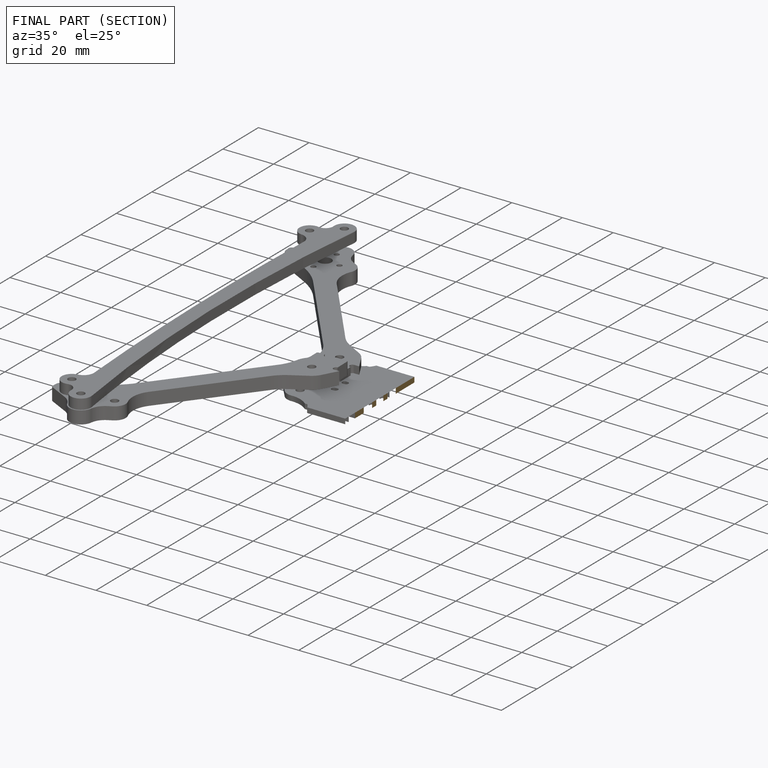
[diagram: finished part — half-section view (interior)]
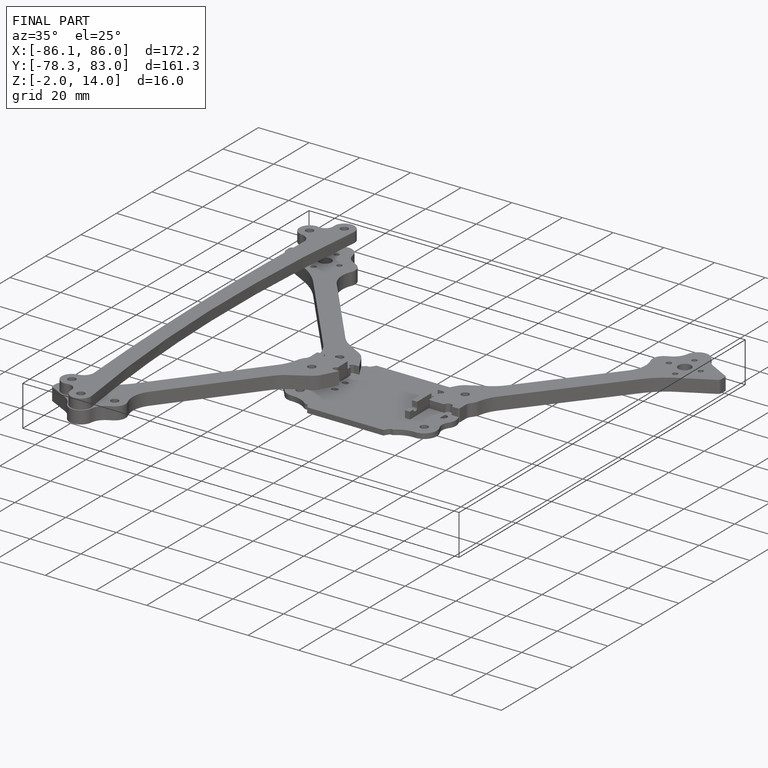
[diagram: finished part — iso view with bounding-box wireframe]
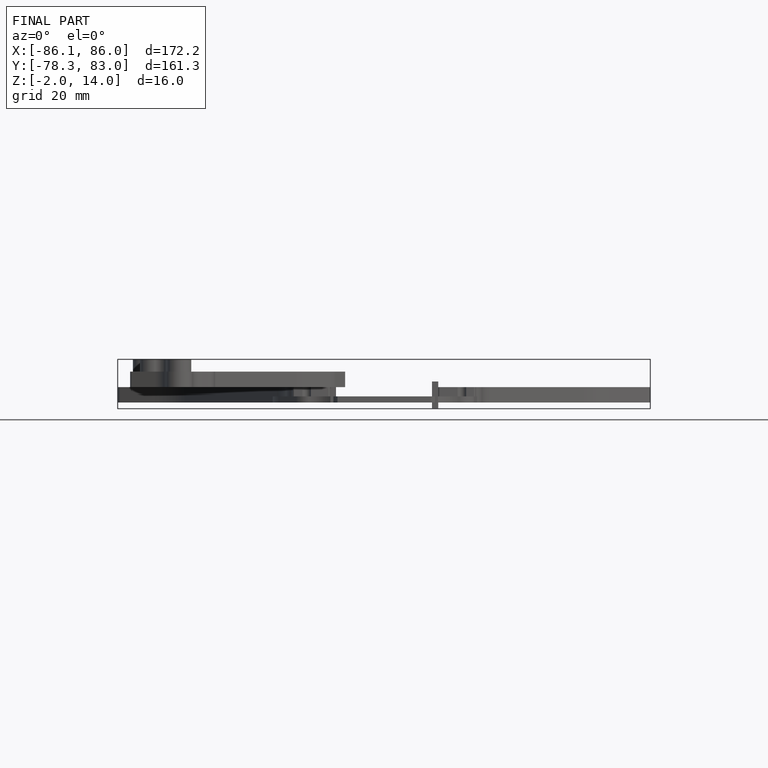
[diagram: finished part — front view with bounding-box wireframe]
